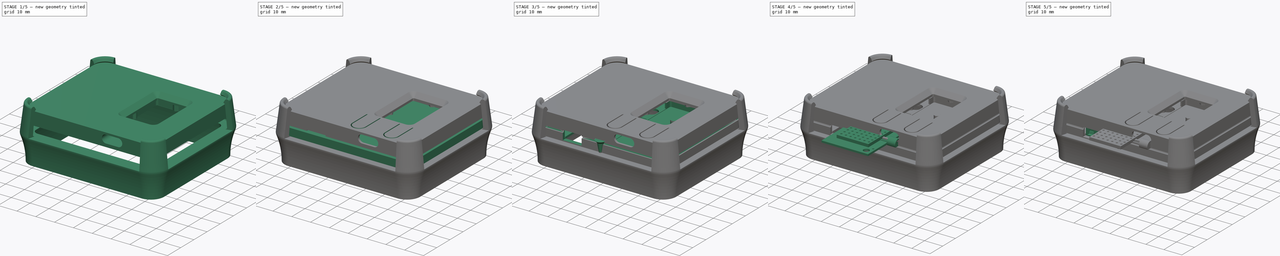
[diagram: build sequence overview — one tinted view per stage of 5, left to right]
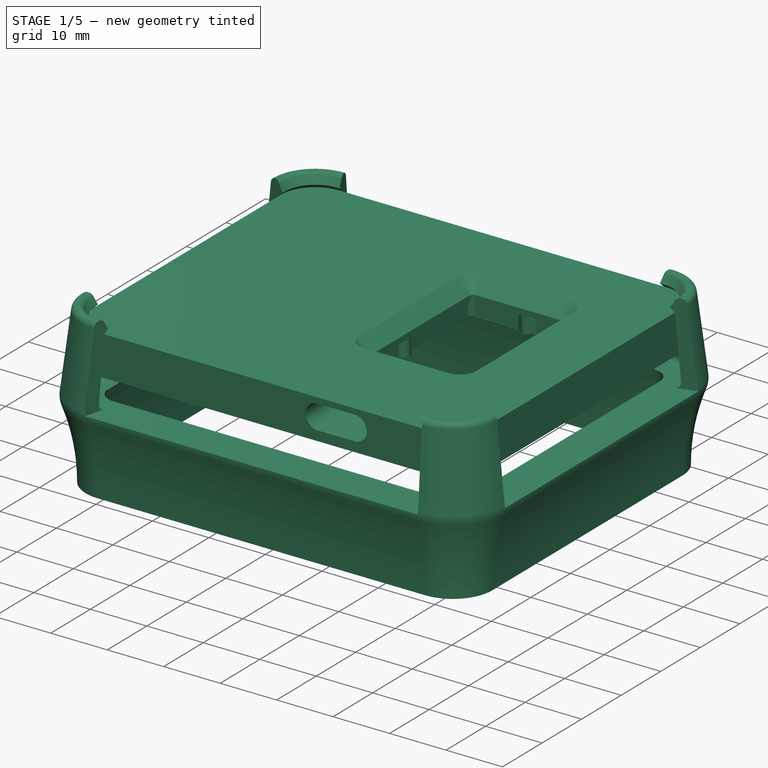
[diagram: stage 1 of 5 — iso view after this stage's code; geometry added in this stage tinted green]
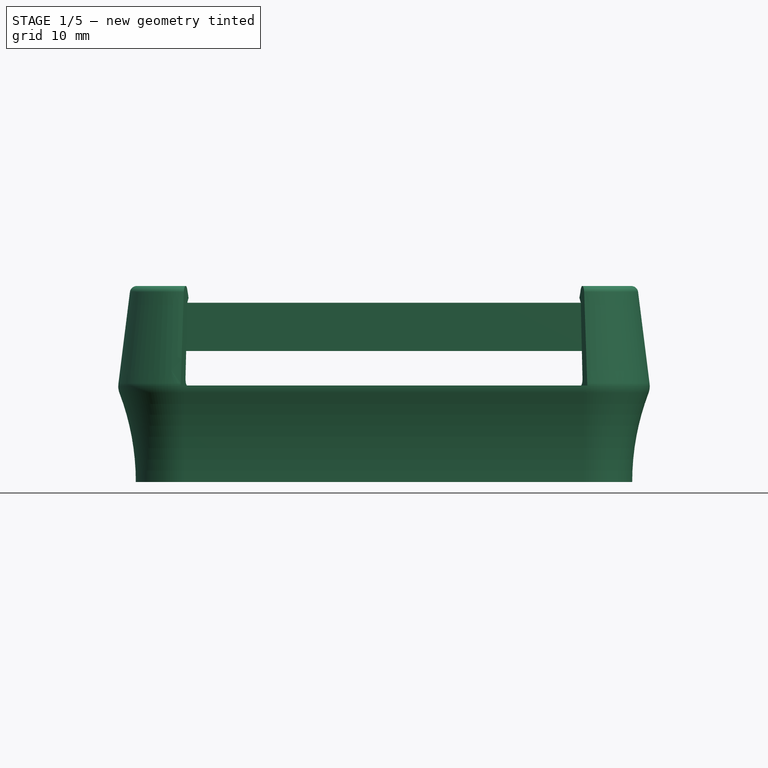
[diagram: stage 1 of 5 — front view after this stage's code; geometry added in this stage tinted green]
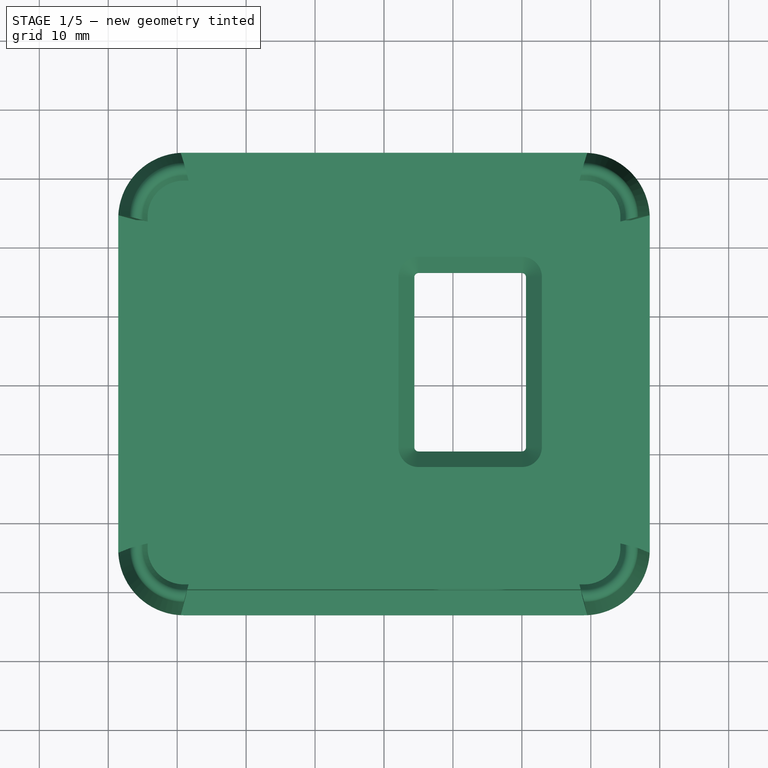
[diagram: stage 1 of 5 — top view after this stage's code; geometry added in this stage tinted green]
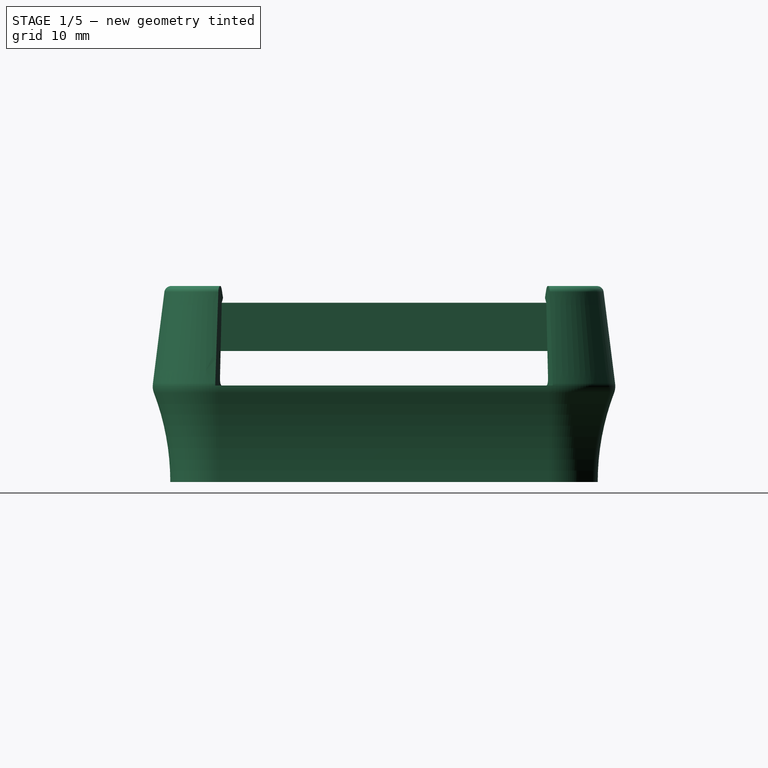
[diagram: stage 1 of 5 — right view after this stage's code; geometry added in this stage tinted green]
FCSTD DOCUMENT  (FreeCAD 0.19R24291 (Git))
Label: Thermostat
License: All rights reserved
LicenseURL: http://en.wikipedia.org/wiki/All_rights_reserved
objects: Sketcher::SketchObject×50, PartDesign::Pocket×28, PartDesign::Body×13, PartDesign::Pad×10, PartDesign::Mirrored×7, App::Part×6, PartDesign::LinearPattern×4, PartDesign::Groove×4, Part::Feature×3, PartDesign::Revolution×3, PartDesign::MultiTransform×2, PartDesign::PolarPattern×2, PartDesign::AdditivePipe×2, PartDesign::SubtractivePipe×2, Part::Compound×1, Part::FeaturePython×1, PartDesign::Plane×1
note: 181 computed .brp shape members not serialized (recipe doc carries the construction recipe); baked Part::Feature solids carry a one-line shape summary decoded from their .brp

FEATURE [App::Part] Part001  label="DallasSensor"
  Group = -> [Body005,Body012,Array]
  Origin = -> Origin014
  Placement = pos=(-2.55,8.87,-6e-16) rot=(-0.57735,-0.57735,-0.57735;2.0944rad)
FEATURE [App::Part] Part  label="SensorPCB"
  Group = -> [Body009,Part001]
  Origin = -> Origin009
  Placement = pos=(-13.5,48,1.6) rot=(-0.707107,-0.707107,0;3.14159rad)
FEATURE [Sketcher::SketchObject] Sketch025  label="th base"
  FullyConstrained = true
  MapMode = 5
  Support = -> [XY_Plane016]
  sketch-geometry (12):
    g0: LineSegment StartX=29 StartY=60 StartZ=0 EndX=-29 EndY=60 EndZ=0
    g1: LineSegment StartX=-35 StartY=54 StartZ=0 EndX=-35 EndY=6 EndZ=0
    g2: LineSegment StartX=-29 StartY=0 StartZ=0 EndX=29 EndY=0 EndZ=0
    g3: LineSegment StartX=35 StartY=6 StartZ=0 EndX=35 EndY=54 EndZ=0
    g4: ArcOfCircle CenterX=-29 CenterY=6 CenterZ=0 NormalX=0 NormalY=0 NormalZ=1 AngleXU=0 Radius=6 StartAngle=3.14159 EndAngle=4.71239
    g5: ArcOfCircle CenterX=29 CenterY=6 CenterZ=0 NormalX=0 NormalY=0 NormalZ=1 AngleXU=0 Radius=6 StartAngle=4.71239 EndAngle=6.28319
    g6: ArcOfCircle CenterX=29 CenterY=54 CenterZ=0 NormalX=0 NormalY=0 NormalZ=1 AngleXU=0 Radius=6 StartAngle=0 EndAngle=1.5708
    g7: ArcOfCircle CenterX=-29 CenterY=54 CenterZ=0 NormalX=0 NormalY=0 NormalZ=1 AngleXU=0 Radius=6 StartAngle=1.5708 EndAngle=3.14159
    g8: LineSegment StartX=-29 StartY=54 StartZ=0 EndX=29 EndY=54 EndZ=0
    g9: LineSegment StartX=29 StartY=54 StartZ=0 EndX=29 EndY=6 EndZ=0
    g10: LineSegment StartX=29 StartY=6 StartZ=0 EndX=-29 EndY=6 EndZ=0
    g11: LineSegment StartX=-29 StartY=6 StartZ=0 EndX=-29 EndY=54 EndZ=0
  constraints (27):
    c: Horizontal(g0)
    c: Horizontal(g2)
    c: Vertical(g1)
    c: Vertical(g3)
    c: Tangent(g2,g4) = -1.5708
    c: Tangent(g1,g4) = -1.5708
    c: Tangent(g2,g5) = -1.5708
    c: Tangent(g3,g5) = -1.5708
    c: Tangent(g3,g6) = -1.5708
    c: Tangent(g0,g6) = -1.5708
    c: Tangent(g0,g7) = -1.5708
    c: Tangent(g1,g7) = -1.5708
    c: Coincident(g8,g9)
    c: Coincident(g9,g10)
    c: Coincident(g10,g11)
    c: Coincident(g11,g8)
    c: Horizontal(g10)
    c: Vertical(g9)
    c: Coincident(g8,g7)
    c: Coincident(g9,g5)
    c: Coincident(g4,g10)
    c: Coincident(g6,g8)
    c: Symmetric(g7,g6,g-2)
    c: PointOnObject(g2,g-1)
    c: Radius(g6) = 6
    c: DistanceY(g0) = 60
    c: DistanceX(g1,g3) = 70
FEATURE [PartDesign::Pad] Pad014  label="TH Base"
  Direction = (1,1,1)
  Length = 12
  Length2 = 100
  Midplane = true
  Profile = -> Sketch025
  Type = 0
FEATURE [PartDesign::Body] Body015  label="SelftappingScrew3.0x16_002"
  Group = -> [Sketch028,Revolution001,Sketch029,Pocket005,PolarPattern001]
  Origin = -> Origin018
  Placement = pos=(-30,55,-6) rot=(0,1,0;3.14159rad)
  Tip = -> PolarPattern001
FEATURE [Sketcher::SketchObject] Sketch030  label="th screen cutout"
  FullyConstrained = true
  MapMode = 5
  Support = -> [XY_Plane016]
  sketch-geometry (14):
    g0: LineSegment StartX=5 StartY=45.35 StartZ=0 EndX=20 EndY=45.35 EndZ=0
    g1: LineSegment StartX=20 StartY=45.35 StartZ=0 EndX=20 EndY=20.65 EndZ=0
    g2: LineSegment StartX=20 StartY=20.65 StartZ=0 EndX=5 EndY=20.65 EndZ=0
    g3: LineSegment StartX=5 StartY=20.65 StartZ=0 EndX=5 EndY=45.35 EndZ=0
    g4: LineSegment StartX=12.5 StartY=45.35 StartZ=0 EndX=12.5 EndY=20.65 EndZ=0
    g5: LineSegment StartX=20 StartY=33 StartZ=0 EndX=5 EndY=33 EndZ=0
    g6: LineSegment StartX=5 StartY=45.95 StartZ=0 EndX=20 EndY=45.95 EndZ=0
    g7: LineSegment StartX=20.6 StartY=45.35 StartZ=0 EndX=20.6 EndY=20.65 EndZ=0
    g8: LineSegment StartX=20 StartY=20.05 StartZ=0 EndX=5 EndY=20.05 EndZ=0
    g9: LineSegment StartX=4.4 StartY=20.65 StartZ=0 EndX=4.4 EndY=45.35 EndZ=0
    g10: ArcOfCircle CenterX=20 CenterY=45.35 CenterZ=0 NormalX=0 NormalY=0 NormalZ=1 AngleXU=0 Radius=0.6 StartAngle=4.4148e-12 EndAngle=1.5708
    g11: ArcOfCircle CenterX=5 CenterY=45.35 CenterZ=0 NormalX=0 NormalY=0 NormalZ=1 AngleXU=0 Radius=0.6 StartAngle=1.5708 EndAngle=3.14159
    g12: ArcOfCircle CenterX=5 CenterY=20.65 CenterZ=0 NormalX=0 NormalY=0 NormalZ=1 AngleXU=0 Radius=0.6 StartAngle=3.14159 EndAngle=4.71239
    g13: ArcOfCircle CenterX=20 CenterY=20.65 CenterZ=0 NormalX=0 NormalY=0 NormalZ=1 AngleXU=0 Radius=0.6 StartAngle=4.71239 EndAngle=6.28319
  constraints (34):
    c: Coincident(g0,g1)
    c: Coincident(g1,g2)
    c: Coincident(g2,g3)
    c: Coincident(g3,g0)
    c: Horizontal(g0)
    c: Horizontal(g2)
    c: Vertical(g1)
    c: Vertical(g3)
    c: PointOnObject(g4,g0)
    c: PointOnObject(g4,g2)
    c: PointOnObject(g5,g1)
    c: PointOnObject(g5,g3)
    c: Symmetric(g0,g1,g5)
    c: Symmetric(g0,g0,g4)
    c: DistanceX(g0,g0) = 15
    c: DistanceY(g5) = 33
    c: DistanceX(g4) = 12.5
    c: DistanceY(g1,g1) = 24.7
    c: Horizontal(g6)
    c: Horizontal(g8)
    c: Vertical(g7)
    c: Tangent(g6,g10) = 1.5708
    c: Tangent(g7,g10) = 1.5708
    c: Tangent(g9,g11) = 1.5708
    c: Tangent(g6,g11) = 1.5708
    c: Tangent(g9,g12) = 1.5708
    c: Tangent(g8,g12) = 1.5708
    c: Tangent(g8,g13) = 1.5708
    c: Tangent(g7,g13) = 1.5708
    c: Coincident(g13,g1)
    c: Coincident(g2,g12)
    c: Coincident(g0,g11)
    c: Coincident(g0,g10)
    c: Radius(g10) = 0.6
FEATURE [PartDesign::Pocket] Pocket006  label="TH Screen cutout"
  BaseFeature = -> Pad014
  Length = 5
  Length2 = 100
  Profile = -> Sketch030
  Reversed = true
  Type = 1
FEATURE [Sketcher::SketchObject] Sketch031  label="th left button"
  FullyConstrained = true
  MapMode = 5
  Support = -> [XY_Plane016]
  sketch-geometry (11):
    g0: ArcOfCircle CenterX=3.9 CenterY=5.7 CenterZ=0 NormalX=0 NormalY=0 NormalZ=1 AngleXU=0 Radius=3.5 StartAngle=3.14159 EndAngle=6.28319
    g1: LineSegment StartX=0.4 StartY=16.5 StartZ=0 EndX=0.4 EndY=5.7 EndZ=0
    g2: LineSegment StartX=7.4 StartY=16.5 StartZ=0 EndX=7.4 EndY=5.7 EndZ=0
    g3: ArcOfCircle CenterX=0.4 CenterY=16.5 CenterZ=0 NormalX=0 NormalY=0 NormalZ=1 AngleXU=0 Radius=0.25 StartAngle=-6.2e-15 EndAngle=3.14157
    g4: ArcOfCircle CenterX=7.4 CenterY=16.5 CenterZ=0 NormalX=0 NormalY=0 NormalZ=1 AngleXU=0 Radius=0.25 StartAngle=3.1e-15 EndAngle=3.14159
    g5: ArcOfCircle CenterX=3.9 CenterY=5.7 CenterZ=0 NormalX=0 NormalY=0 NormalZ=1 AngleXU=0 Radius=3.25 StartAngle=3.14159 EndAngle=6.28319
    g6: ArcOfCircle CenterX=3.9 CenterY=5.7 CenterZ=0 NormalX=0 NormalY=0 NormalZ=1 AngleXU=0 Radius=3.75 StartAngle=3.14159 EndAngle=6.28319
    g7: LineSegment StartX=7.15 StartY=5.7 StartZ=0 EndX=7.15 EndY=16.5 EndZ=0
    g8: LineSegment StartX=7.65 StartY=16.5 StartZ=0 EndX=7.65 EndY=5.7 EndZ=0
    g9: LineSegment StartX=0.65 StartY=5.7 StartZ=0 EndX=0.65 EndY=16.5 EndZ=0
    g10: LineSegment StartX=0.15 StartY=16.5 StartZ=0 EndX=0.15 EndY=5.7 EndZ=0
  constraints (26):
    c: Tangent(g1,g0) = -1.5708
    c: Tangent(g2,g0) = 1.5708
    c: Vertical(g1)
    c: DistanceX(g0) = 3.9
    c: DistanceY(g0) = 5.7
    c: Vertical(g2)
    c: DistanceY(g2) = 16.5
    c: Equal(g1,g2)
    c: DistanceX(g1,g2) = 7
    c: Coincident(g3,g1)
    c: Coincident(g4,g2)
    c: Coincident(g5,g0)
    c: Coincident(g6,g5)
    c: Vertical(g7)
    c: Vertical(g8)
    c: Vertical(g9)
    c: Vertical(g10)
    c: Tangent(g6,g10) = -1.5708
    c: Tangent(g5,g9) = 1.5708
    c: Tangent(g5,g7) = -1.5708
    c: Tangent(g6,g8) = 1.5708
    c: Tangent(g4,g8) = 1.5708
    c: Tangent(g4,g7) = 1.5708
    c: Tangent(g3,g9) = -1.5708
    c: Radius(g4) = 0.25
    c: Coincident(g3,g10)
FEATURE [Sketcher::SketchObject] Sketch032  label="th separation top bottom"
  FullyConstrained = true
  MapMode = 5
  Placement = pos=(0,0,0) rot=(1,0,0;1.5708rad)
  Support = -> [XZ_Plane016]
  sketch-geometry (4):
    g0: LineSegment StartX=-40 StartY=-12 StartZ=0 EndX=40 EndY=-12 EndZ=0
    g1: LineSegment StartX=40 StartY=-12 StartZ=0 EndX=40 EndY=-1 EndZ=0
    g2: LineSegment StartX=40 StartY=-1 StartZ=0 EndX=-40 EndY=-1 EndZ=0
    g3: LineSegment StartX=-40 StartY=-1 StartZ=0 EndX=-40 EndY=-12 EndZ=0
  constraints (11):
    c: Coincident(g0,g1)
    c: Coincident(g1,g2)
    c: Coincident(g2,g3)
    c: Coincident(g3,g0)
    c: Horizontal(g2)
    c: Vertical(g1)
    c: Vertical(g3)
    c: DistanceY(g1,g-1) = 1
    c: Symmetric(g0,g0,g-2)
    c: DistanceX(g0,g0) = 80
    c: DistanceY(g0) = -12
FEATURE [PartDesign::Pocket] Pocket008  label="TH Separation top bottom"
  BaseFeature = -> Pocket006
  Length = 5
  Length2 = 100
  Midplane = true
  Profile = -> Sketch032
  Type = 1
FEATURE [PartDesign::Body] Body016  label="BH Bottom housing"
  Group = -> [Sketch033,Pad015,Sketch035,Pocket011,AdditivePipe,Sketch046,Sketch047,Sketch050,Sketch051,Sketch052,Pocket020,Pocket021,Pocket022,Groove002,Groove003,Sketch053,Sketch054,Pocket023,Sketch055,Pocket024,Sketch056,Pocket025,Sketch057,Pocket026,Revolution002,Sketch058]
  Origin = -> Origin020
  Tip = -> Revolution002
FEATURE [App::Part] Part003  label="BottomHousing"
  Group = -> [Body016]
  Origin = -> Origin019
FEATURE [Sketcher::SketchObject] Sketch059  label="th hole connector"
  FullyConstrained = true
  MapMode = 5
  Placement = pos=(0,0,0) rot=(1,0,0;1.5708rad)
  Support = -> [XZ_Plane016]
  sketch-geometry (5):
    g0: LineSegment StartX=-20 StartY=-0.5 StartZ=0 EndX=-10 EndY=-0.5 EndZ=0
    g1: LineSegment StartX=-10 StartY=-0.5 StartZ=0 EndX=-10 EndY=-5.5 EndZ=0
    g2: LineSegment StartX=-10 StartY=-5.5 StartZ=0 EndX=-20 EndY=-5.5 EndZ=0
    g3: LineSegment StartX=-20 StartY=-5.5 StartZ=0 EndX=-20 EndY=-0.5 EndZ=0
    g4: LineSegment StartX=-15 StartY=-0.5 StartZ=0 EndX=-15 EndY=-5.5 EndZ=0
  constraints (15):
    c: Coincident(g0,g1)
    c: Coincident(g1,g2)
    c: Coincident(g2,g3)
    c: Coincident(g3,g0)
    c: Horizontal(g0)
    c: Horizontal(g2)
    c: Vertical(g1)
    c: Vertical(g3)
    c: PointOnObject(g4,g0)
    c: PointOnObject(g4,g2)
    c: Symmetric(g0,g0,g4)
    c: DistanceX(g4,g-1) = 15
    c: DistanceX(g0,g0) = 10
    c: DistanceY(g1,g-1) = 5.5
    c: DistanceY(g1,g1) = 5
FEATURE [Sketcher::SketchObject] Sketch060  label="th groove rim crs"
  AttachmentOffset = pos=(0,0,-30) rot=(0,0,1;0rad)
  FullyConstrained = true
  MapMode = 5
  Placement = pos=(0,30,6.7e-15) rot=(1,0,0;1.5708rad)
  Support = -> [XZ_Plane016]
  sketch-geometry (4):
    g0: LineSegment StartX=33 StartY=-2 StartZ=0 EndX=33 EndY=0.7 EndZ=0
    g1: LineSegment StartX=34.8906 StartY=-2 StartZ=0 EndX=31.1094 EndY=-2 EndZ=0
    g2: LineSegment StartX=31.1094 StartY=-2 StartZ=0 EndX=33 EndY=0.7 EndZ=0
    g3: LineSegment StartX=33 StartY=0.7 StartZ=0 EndX=34.8906 EndY=-2 EndZ=0
  constraints (11):
    c: Vertical(g0)
    c: Coincident(g1,g2)
    c: Coincident(g3,g1)
    c: DistanceX(g0) = 33
    c: Symmetric(g1,g1,g0)
    c: PointOnObject(g0,g1)
    c: DistanceY(g1) = -2
    c: Angle(g2,g3) = 1.22173
    c: Coincident(g0,g2)
    c: Coincident(g0,g3)
    c: DistanceY(g-1,g2) = 0.7
FEATURE [PartDesign::SubtractivePipe] SubtractivePipe001  label="TH Groove rim"
  AuxilleryCurvelinear = true
  AuxillerySpineTangent = false
  BaseFeature = -> Pocket008
  Binormal = (0,0,0)
  Mode = 0
  Profile = -> Sketch060
  Spine = -> Sketch025
  SpineTangent = false
  Transformation = 0
  Transition = 0
FEATURE [PartDesign::Pocket] Pocket013  label="TH Pocket for glass"
  BaseFeature = -> SubtractivePipe001
  Length = 5
  Length2 = 100
  Profile = -> Sketch038
  Type = 1
FEATURE [PartDesign::SubtractivePipe] SubtractivePipe  label="TH Fillet screen cutout"
  AuxilleryCurvelinear = true
  AuxillerySpineTangent = false
  BaseFeature = -> Pocket013
  Binormal = (0,0,0)
  Mode = 0
  Profile = -> Sketch039
  Spine = -> Sketch030
  SpineTangent = false
  Transformation = 0
  Transition = 0
FEATURE [PartDesign::Pocket] Pocket012  label="TH USB cutout"
  BaseFeature = -> SubtractivePipe
  Length = 12
  Length2 = 100
  Profile = -> Sketch037
  Type = 0
FEATURE [PartDesign::Body] Body013  label="TH Top housing"
  Group = -> [Sketch025,Pad014,Sketch030,Pocket006,Sketch031,Sketch032,Pocket008,SubtractivePipe001,Sketch037,Sketch038,Pocket013,Sketch039,SubtractivePipe,Pocket012,Pocket017,Sketch040,Pocket014,Pocket007,Pocket015,LinearPattern003,Sketch041,Sketch042,Pocket016,Sketch043,Sketch044,Groove,Sketch045,Groove001,Sketch048,Pocket018,Sketch049,Pocket019,Sketch059,Sketch060,Pocket027]
  Origin = -> Origin016
  Tip = -> Pocket027
FEATURE [App::Part] Part002  label="TopHousing"
  Group = -> [Body013]
  Origin = -> Origin015
FEATURE [Sketcher::SketchObject] Sketch061  label="hd base"
  FullyConstrained = true
  MapMode = 5
  Support = -> [XY_Plane022]
  sketch-geometry (12):
    g0: LineSegment StartX=29 StartY=60 StartZ=0 EndX=-29 EndY=60 EndZ=0
    g1: LineSegment StartX=-35 StartY=54 StartZ=0 EndX=-35 EndY=6 EndZ=0
    g2: LineSegment StartX=-29 StartY=0 StartZ=0 EndX=29 EndY=0 EndZ=0
    g3: LineSegment StartX=35 StartY=6 StartZ=0 EndX=35 EndY=54 EndZ=0
    g4: ArcOfCircle CenterX=-29 CenterY=6 CenterZ=0 NormalX=0 NormalY=0 NormalZ=1 AngleXU=0 Radius=6 StartAngle=3.14159 EndAngle=4.71239
    g5: ArcOfCircle CenterX=29 CenterY=6 CenterZ=0 NormalX=0 NormalY=0 NormalZ=1 AngleXU=0 Radius=6 StartAngle=4.71239 EndAngle=6.28319
    g6: ArcOfCircle CenterX=29 CenterY=54 CenterZ=0 NormalX=0 NormalY=0 NormalZ=1 AngleXU=0 Radius=6 StartAngle=0 EndAngle=1.5708
    g7: ArcOfCircle CenterX=-29 CenterY=54 CenterZ=0 NormalX=0 NormalY=0 NormalZ=1 AngleXU=0 Radius=6 StartAngle=1.5708 EndAngle=3.14159
    g8: LineSegment StartX=-29 StartY=54 StartZ=0 EndX=29 EndY=54 EndZ=0
    g9: LineSegment StartX=29 StartY=54 StartZ=0 EndX=29 EndY=6 EndZ=0
    g10: LineSegment StartX=29 StartY=6 StartZ=0 EndX=-29 EndY=6 EndZ=0
    g11: LineSegment StartX=-29 StartY=6 StartZ=0 EndX=-29 EndY=54 EndZ=0
  constraints (27):
    c: Horizontal(g0)
    c: Horizontal(g2)
    c: Vertical(g1)
    c: Vertical(g3)
    c: Tangent(g2,g4) = -1.5708
    c: Tangent(g1,g4) = -1.5708
    c: Tangent(g2,g5) = -1.5708
    c: Tangent(g3,g5) = -1.5708
    c: Tangent(g3,g6) = -1.5708
    c: Tangent(g0,g6) = -1.5708
    c: Tangent(g0,g7) = -1.5708
    c: Tangent(g1,g7) = -1.5708
    c: Coincident(g8,g9)
    c: Coincident(g9,g10)
    c: Coincident(g10,g11)
    c: Coincident(g11,g8)
    c: Horizontal(g10)
    c: Vertical(g9)
    c: Coincident(g8,g7)
    c: Coincident(g9,g5)
    c: Coincident(g4,g10)
    c: Coincident(g6,g8)
    c: Symmetric(g7,g6,g-2)
    c: PointOnObject(g2,g-1)
    c: Radius(g6) = 6
    c: DistanceY(g0) = 60
    c: DistanceX(g1,g3) = 70
FEATURE [Sketcher::SketchObject] Sketch062
  FullyConstrained = true
  MapMode = 5
  Placement = pos=(0,0,0) rot=(0.57735,0.57735,0.57735;2.0944rad)
  Support = -> [YZ_Plane022]
  sketch-geometry (12):
    g0: LineSegment StartX=0 StartY=6 StartZ=0 EndX=0.707107 EndY=6.70711 EndZ=0
    g1: LineSegment StartX=0.707107 StartY=6.70711 StartZ=0 EndX=0 EndY=7.93185 EndZ=0
    g2: LineSegment StartX=-1.85815 StartY=7.55711 StartZ=0 EndX=-3.53018 EndY=-5.68687 EndZ=0
    g3: LineSegment StartX=-1 StartY=-20 StartZ=0 EndX=1 EndY=-20 EndZ=0
    g4: LineSegment StartX=3 StartY=-6 StartZ=0 EndX=0 EndY=-6 EndZ=0
    g5: LineSegment StartX=-0.958362 StartY=-4.95413 StartZ=0 EndX=-1e-16 EndY=6 EndZ=0
    g6: ArcOfCircle CenterX=-0.866025 CenterY=7.43185 CenterZ=0 NormalX=0 NormalY=0 NormalZ=1 AngleXU=0 Radius=1 StartAngle=0.523599 EndAngle=3.01601
    g7: ArcOfCircle CenterX=-0.553802 CenterY=-6.06263 CenterZ=0 NormalX=0 NormalY=0 NormalZ=1 AngleXU=0 Radius=3 StartAngle=3.01601 EndAngle=3.50404
    g8: LineSegment StartX=-1.04986 StartY=-6 StartZ=0 EndX=-3.53018 EndY=-5.68687 EndZ=0
    g9: ArcOfCircle CenterX=1e-16 CenterY=-5.03798 CenterZ=0 NormalX=0 NormalY=0 NormalZ=1 AngleXU=0 Radius=0.962023 StartAngle=3.05433 EndAngle=4.71239
    g10: ArcOfCircle CenterX=51 CenterY=-20 CenterZ=0 NormalX=0 NormalY=0 NormalZ=1 AngleXU=0 Radius=50 StartAngle=2.8578 EndAngle=3.14159
    g11: ArcOfCircle CenterX=-37.3085 CenterY=-20 CenterZ=0 NormalX=0 NormalY=0 NormalZ=1 AngleXU=0 Radius=36.3085 StartAngle=0 EndAngle=0.362447
  constraints (34):
    c: PointOnObject(g0,g-2)
    c: Coincident(g0,g1)
    c: Horizontal(g4)
    c: Coincident(g5,g0)
    c: DistanceY(g0) = 6
    c: Angle(g-2,g0) = 2.35619
    c: Angle(g-2,g1) = 0.523599
    c: Tangent(g1,g6) = -1.5708
    c: Tangent(g2,g6) = -1.5708
    c: Distance(g0) = 1
    c: PointOnObject(g1,g-2)
    c: Radius(g6) = 1
    c: Angle(g5,g-2) = 0.0872665
    c: Distance(g8,g2) = 2.5
    c: DistanceY(g8,g-1) = 6
    c: DistanceX(g4) = 3
    c: DistanceY(g3,g-1) = 20
    c: Tangent(g2,g7) = -1.5708
    c: Radius(g7) = 3
    c: Coincident(g8,g2)
    c: Perpendicular(g2,g8)
    c: Tangent(g4,g9) = 1.5708
    c: Tangent(g5,g9) = 1.5708
    c: PointOnObject(g4,g-2)
    c: PointOnObject(g8,g5)
    c: DistanceY(g4) = -6
    c: Symmetric(g3,g3,g-2)
    c: DistanceX(g3,g3) = 2
    c: Coincident(g10,g4)
    c: Coincident(g10,g3)
    c: PointOnObject(g10,g3)
    c: Coincident(g11,g3)
    c: Tangent(g7,g11) = 1.5708
    c: PointOnObject(g11,g3)
FEATURE [PartDesign::AdditivePipe] AdditivePipe001
  AuxilleryCurvelinear = true
  AuxillerySpineTangent = false
  Binormal = (0,0,0)
  Mode = 0
  Placement = pos=(0,0,0) rot=(0.57735,0.57735,0.57735;2.0944rad)
  Profile = -> Sketch062
  Spine = -> Sketch061
  SpineTangent = false
  Transformation = 0
  Transition = 0
FEATURE [Sketcher::SketchObject] Sketch063
  AttachmentOffset = pos=(0,0,-6) rot=(0,0,1;0rad)
  ExternalGeometry = -> [Sketch061]
  FullyConstrained = true
  MapMode = 5
  Placement = pos=(0,0,-6) rot=(0,0,1;0rad)
  Support = -> [XY_Plane022]
  sketch-geometry (4):
    g0: LineSegment StartX=-26.9294 StartY=6 StartZ=0 EndX=-32.2884 EndY=-14 EndZ=0
    g1: LineSegment StartX=-32.2884 StartY=-14 StartZ=0 EndX=32.2884 EndY=-14 EndZ=0
    g2: LineSegment StartX=32.2884 StartY=-14 StartZ=0 EndX=26.9294 EndY=6 EndZ=0
    g3: LineSegment StartX=26.9294 StartY=6 StartZ=0 EndX=-26.9294 EndY=6 EndZ=0
  constraints (10):
    c: Coincident(g0,g1)
    c: Coincident(g1,g2)
    c: Angle(g0,g2) = 0.523599
    c: DistanceY(g2,g2) = 20
    c: Coincident(g0,g3)
    c: Coincident(g2,g3)
    c: Symmetric(g2,g0,g-2)
    c: DistanceY(g-1,g2) = 6
    c: Distance(g-4,g2) = 2
    c: Symmetric(g0,g1,g-2)
FEATURE [PartDesign::Pocket] Pocket028
  BaseFeature = -> AdditivePipe001
  Length = 5
  Length2 = 100
  Placement = pos=(0,0,0) rot=(0.57735,0.57735,0.57735;2.0944rad)
  Profile = -> Sketch063
  Reversed = true
  Type = 1
FEATURE [PartDesign::Plane] DatumPlane
  AttachmentOffset = pos=(0,0,-30) rot=(0,0,1;0rad)
  Length = 89.5245
  MapMode = 5
  Placement = pos=(0,30,-6.7e-15) rot=(1,0,0;1.5708rad)
  ResizeMode = 0
  Support = -> [XZ_Plane022]
  Width = 62.4182
FEATURE [PartDesign::Mirrored] Mirrored005
  BaseFeature = -> Pocket028
  MirrorPlane = -> DatumPlane
  Originals = -> [Pocket028]
  Placement = pos=(0,0,0) rot=(0.57735,0.57735,0.57735;2.0944rad)
FEATURE [Sketcher::SketchObject] Sketch064
  AttachmentOffset = pos=(0,0,-6) rot=(0,0,1;0rad)
  ExternalGeometry = -> [Sketch061]
  FullyConstrained = true
  MapMode = 5
  Placement = pos=(0,0,-6) rot=(0,0,1;0rad)
  Support = -> [XY_Plane022]
  sketch-geometry (5):
    g0: LineSegment StartX=-45 StartY=3.78337 StartZ=0 EndX=-29 EndY=8.07055 EndZ=0
    g1: LineSegment StartX=-29 StartY=8.07055 StartZ=0 EndX=-29 EndY=51.9294 EndZ=0
    g2: LineSegment StartX=-29 StartY=51.9294 StartZ=0 EndX=-45 EndY=56.2166 EndZ=0
    g3: LineSegment StartX=-45 StartY=56.2166 StartZ=0 EndX=-45 EndY=3.78337 EndZ=0
    g4: LineSegment StartX=-45 StartY=30 StartZ=0 EndX=0 EndY=30 EndZ=0
  constraints (13):
    c: Coincident(g0,g1)
    c: Coincident(g1,g2)
    c: Coincident(g2,g3)
    c: Coincident(g3,g0)
    c: PointOnObject(g4,g3)
    c: PointOnObject(g4,g-2)
    c: Symmetric(g-4,g-3,g4)
    c: Symmetric(g1,g0,g4)
    c: Symmetric(g2,g0,g4)
    c: Distance(g-3,g0) = 2
    c: Angle(g2,g0) = 0.523599
    c: DistanceX(g-4,g1) = 6
    c: DistanceX(g2,g-4) = 10
FEATURE [PartDesign::Pocket] Pocket029
  BaseFeature = -> Mirrored005
  Length = 5
  Length2 = 100
  Placement = pos=(0,0,0) rot=(0.57735,0.57735,0.57735;2.0944rad)
  Profile = -> Sketch064
  Reversed = true
  Type = 1
FEATURE [PartDesign::Mirrored] Mirrored006
  BaseFeature = -> Pocket029
  MirrorPlane = -> YZ_Plane022
  Originals = -> [Pocket029]
  Placement = pos=(0,0,0) rot=(0.57735,0.57735,0.57735;2.0944rad)
FEATURE [PartDesign::Body] Body017  label="HD Holder"
  Group = -> [Sketch061,Sketch062,AdditivePipe001,Sketch063,Pocket028,DatumPlane,Mirrored005,Sketch064,Pocket029,Mirrored006]
  Origin = -> Origin022
  Tip = -> Mirrored006
FEATURE [App::Part] Part004  label="Holder"
  Group = -> [Body017]
  Origin = -> Origin021
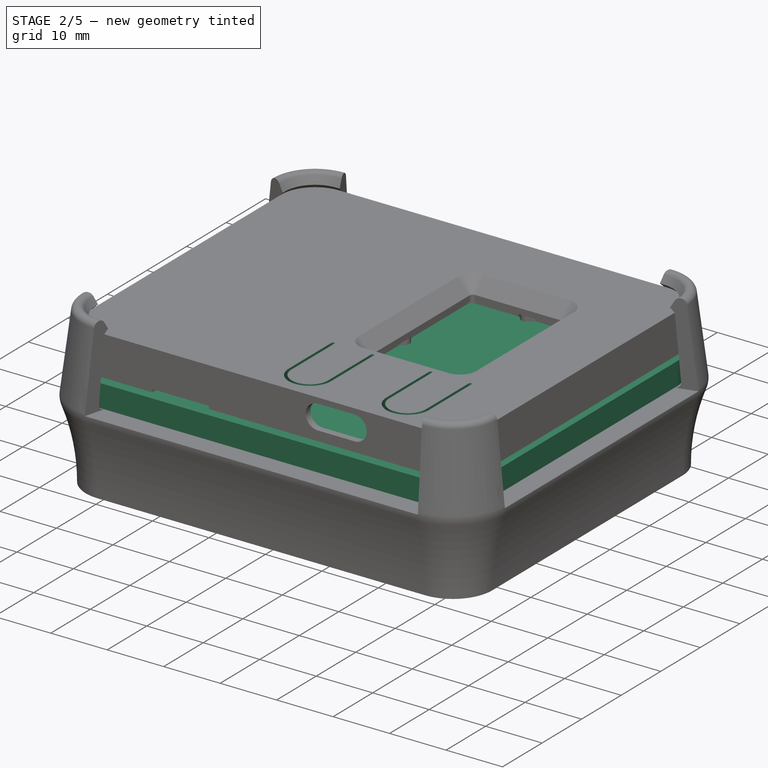
[diagram: stage 2 of 5 — iso view after this stage's code; geometry added in this stage tinted green]
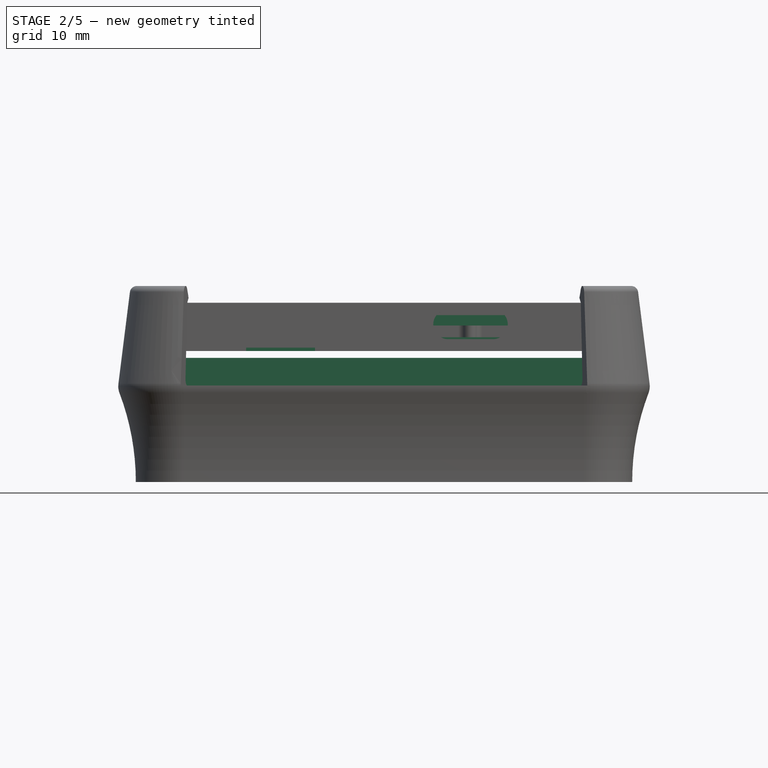
[diagram: stage 2 of 5 — front view after this stage's code; geometry added in this stage tinted green]
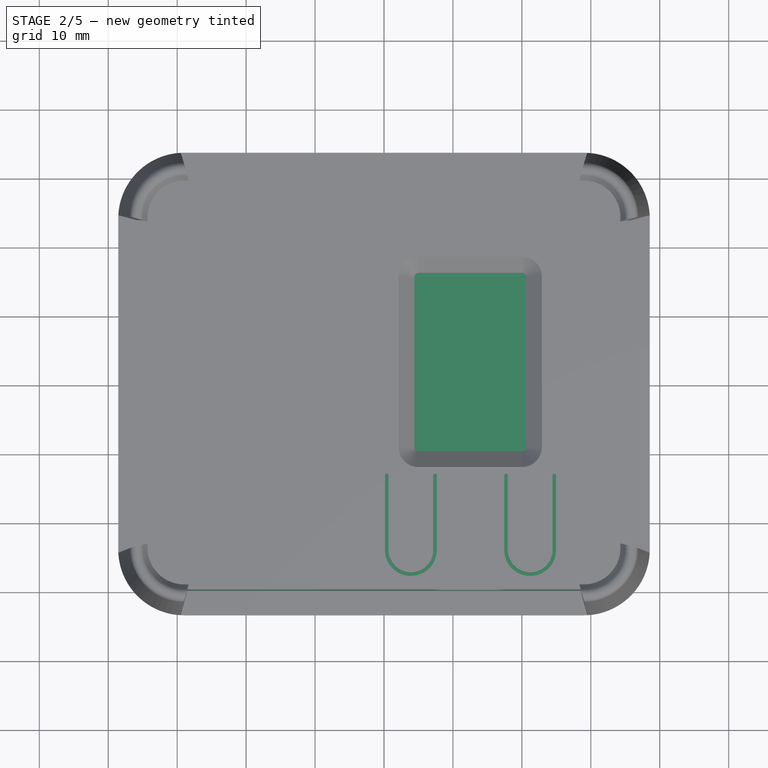
[diagram: stage 2 of 5 — top view after this stage's code; geometry added in this stage tinted green]
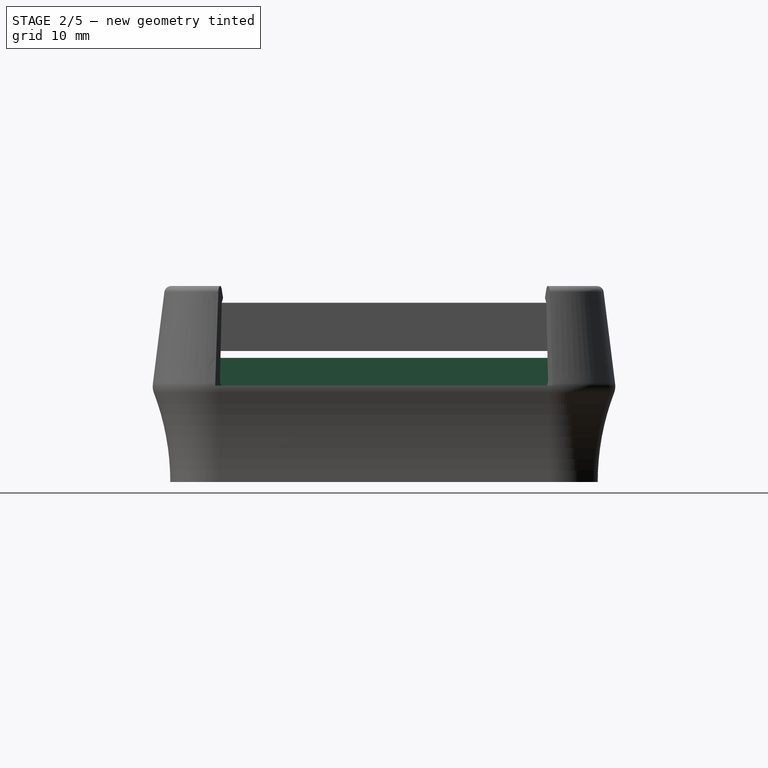
[diagram: stage 2 of 5 — right view after this stage's code; geometry added in this stage tinted green]
FEATURE [Sketcher::SketchObject] Sketch033  label="bh base"
  FullyConstrained = true
  MapMode = 5
  Support = -> [XY_Plane020]
  sketch-geometry (12):
    g0: LineSegment StartX=29 StartY=60 StartZ=0 EndX=-29 EndY=60 EndZ=0
    g1: LineSegment StartX=-35 StartY=54 StartZ=0 EndX=-35 EndY=6 EndZ=0
    g2: LineSegment StartX=-29 StartY=0 StartZ=0 EndX=29 EndY=0 EndZ=0
    g3: LineSegment StartX=35 StartY=6 StartZ=0 EndX=35 EndY=54 EndZ=0
    g4: ArcOfCircle CenterX=-29 CenterY=6 CenterZ=0 NormalX=0 NormalY=0 NormalZ=1 AngleXU=0 Radius=6 StartAngle=3.14159 EndAngle=4.71239
    g5: ArcOfCircle CenterX=29 CenterY=6 CenterZ=0 NormalX=0 NormalY=0 NormalZ=1 AngleXU=0 Radius=6 StartAngle=4.71239 EndAngle=6.28319
    g6: ArcOfCircle CenterX=29 CenterY=54 CenterZ=0 NormalX=0 NormalY=0 NormalZ=1 AngleXU=0 Radius=6 StartAngle=0 EndAngle=1.5708
    g7: ArcOfCircle CenterX=-29 CenterY=54 CenterZ=0 NormalX=0 NormalY=0 NormalZ=1 AngleXU=0 Radius=6 StartAngle=1.5708 EndAngle=3.14159
    g8: LineSegment StartX=-29 StartY=54 StartZ=0 EndX=29 EndY=54 EndZ=0
    g9: LineSegment StartX=29 StartY=54 StartZ=0 EndX=29 EndY=6 EndZ=0
    g10: LineSegment StartX=29 StartY=6 StartZ=0 EndX=-29 EndY=6 EndZ=0
    g11: LineSegment StartX=-29 StartY=6 StartZ=0 EndX=-29 EndY=54 EndZ=0
  constraints (27):
    c: Horizontal(g0)
    c: Horizontal(g2)
    c: Vertical(g1)
    c: Vertical(g3)
    c: Tangent(g2,g4) = -1.5708
    c: Tangent(g1,g4) = -1.5708
    c: Tangent(g2,g5) = -1.5708
    c: Tangent(g3,g5) = -1.5708
    c: Tangent(g3,g6) = -1.5708
    c: Tangent(g0,g6) = -1.5708
    c: Tangent(g0,g7) = -1.5708
    c: Tangent(g1,g7) = -1.5708
    c: Coincident(g8,g9)
    c: Coincident(g9,g10)
    c: Coincident(g10,g11)
    c: Coincident(g11,g8)
    c: Horizontal(g10)
    c: Vertical(g9)
    c: Coincident(g8,g7)
    c: Coincident(g9,g5)
    c: Coincident(g4,g10)
    c: Coincident(g6,g8)
    c: Symmetric(g7,g6,g-2)
    c: PointOnObject(g2,g-1)
    c: Radius(g6) = 6
    c: DistanceY(g0) = 60
    c: DistanceX(g1,g3) = 70
FEATURE [Sketcher::SketchObject] Sketch035  label="bh separation top bottom"
  FullyConstrained = true
  MapMode = 5
  Placement = pos=(0,0,0) rot=(1,0,0;1.5708rad)
  Support = -> [XZ_Plane016]
  sketch-geometry (4):
    g0: LineSegment StartX=-40 StartY=12 StartZ=0 EndX=40 EndY=12 EndZ=0
    g1: LineSegment StartX=40 StartY=12 StartZ=0 EndX=40 EndY=-2 EndZ=0
    g2: LineSegment StartX=40 StartY=-2 StartZ=0 EndX=-40 EndY=-2 EndZ=0
    g3: LineSegment StartX=-40 StartY=-2 StartZ=0 EndX=-40 EndY=12 EndZ=0
  constraints (11):
    c: Coincident(g0,g1)
    c: Coincident(g1,g2)
    c: Coincident(g2,g3)
    c: Coincident(g3,g0)
    c: Horizontal(g2)
    c: Vertical(g1)
    c: Vertical(g3)
    c: DistanceY(g1,g-1) = 2
    c: Symmetric(g0,g0,g-2)
    c: DistanceX(g0,g0) = 80
    c: DistanceY(g0) = 12
FEATURE [PartDesign::Pad] Pad015  label="BH Base"
  Direction = (1,1,1)
  Length = 12
  Length2 = 100
  Midplane = true
  Profile = -> Sketch033
  Type = 0
FEATURE [PartDesign::Pocket] Pocket011  label="BH Separation top bottom"
  BaseFeature = -> Pad015
  Length = 5
  Length2 = 100
  Midplane = true
  Profile = -> Sketch035
  Type = 1
FEATURE [PartDesign::Pocket] Pocket017  label="TH Trim USB cutout"
  BaseFeature = -> Pocket012
  Length = 5
  Length2 = 100
  Profile = -> Sketch043
  Type = 1
FEATURE [PartDesign::Pocket] Pocket014  label="TH PCB Cutout"
  BaseFeature = -> Pocket017
  Length = 5
  Length2 = 100
  Profile = -> Sketch040
  Type = 1
FEATURE [PartDesign::Pocket] Pocket007  label="TH Left button contour"
  BaseFeature = -> Pocket014
  Length = 5
  Length2 = 100
  Profile = -> Sketch031
  Reversed = true
  Type = 1
FEATURE [PartDesign::Pocket] Pocket015  label="TH Left button recess"
  BaseFeature = -> Pocket007
  Length = 7.5
  Length2 = 100
  Midplane = true
  Profile = -> Sketch041
  Type = 0
FEATURE [PartDesign::LinearPattern] LinearPattern003  label="TH Right button"
  BaseFeature = -> Pocket015
  Direction = -> X_Axis016
  Length = 17.3
  Occurrences = 2
  Originals = -> [Pocket007,Pocket015]
FEATURE [PartDesign::Pocket] Pocket016  label="TH Pocket for reset button"
  BaseFeature = -> LinearPattern003
  Length = 5
  Length2 = 100
  Profile = -> Sketch042
  Type = 1
FEATURE [PartDesign::Groove] Groove  label="TH Screw hole 1"
  Angle = 360
  Axis = (0,6e-16,2.8)
  Base = (30,5,4.5)
  BaseFeature = -> Pocket016
  Profile = -> Sketch044
  ReferenceAxis = -> Sketch044 [Axis0]
FEATURE [PartDesign::Groove] Groove001  label="TH Screw hole 2"
  Angle = 360
  Axis = (0,6e-16,2.8)
  Base = (-30,55,4.5)
  BaseFeature = -> Groove
  Profile = -> Sketch045
  ReferenceAxis = -> Sketch045 [Axis0]
FEATURE [PartDesign::Pocket] Pocket018  label="TH Sensor PCB"
  BaseFeature = -> Groove001
  Length = 5
  Length2 = 100
  Profile = -> Sketch048
  Type = 1
FEATURE [PartDesign::Pocket] Pocket019  label="TH Opentherm PCB"
  BaseFeature = -> Pocket018
  Length = 5
  Length2 = 100
  Profile = -> Sketch049
  Type = 1
FEATURE [PartDesign::Pocket] Pocket027  label="TH Hole connector"
  BaseFeature = -> Pocket019
  Length = 5
  Length2 = 100
  Profile = -> Sketch059
  Type = 0
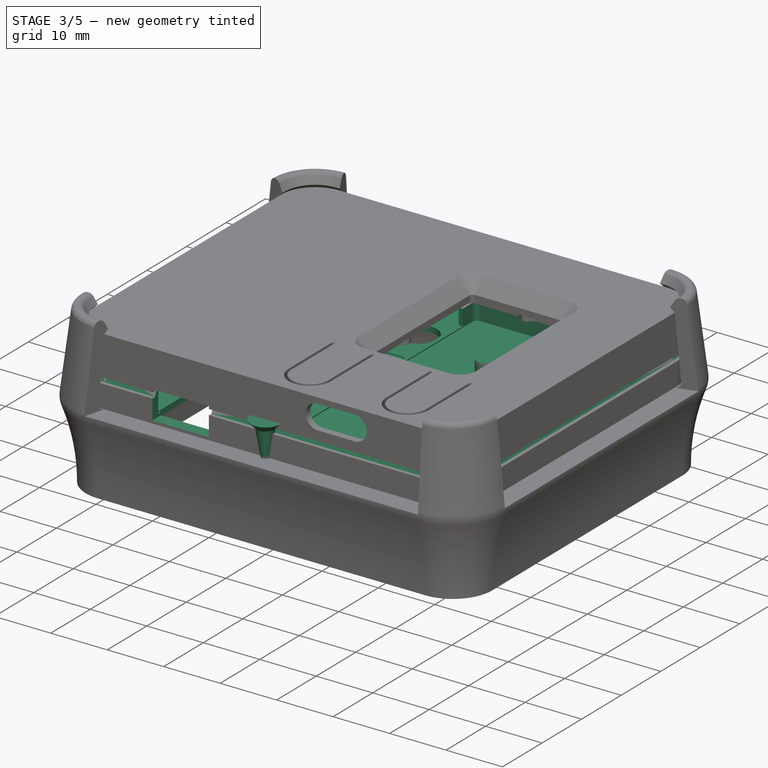
[diagram: stage 3 of 5 — iso view after this stage's code; geometry added in this stage tinted green]
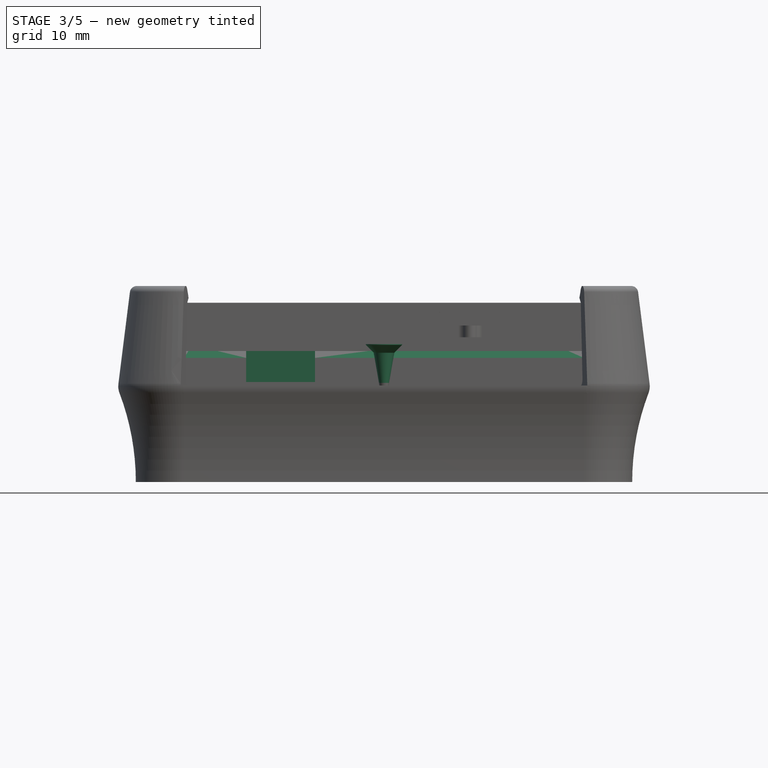
[diagram: stage 3 of 5 — front view after this stage's code; geometry added in this stage tinted green]
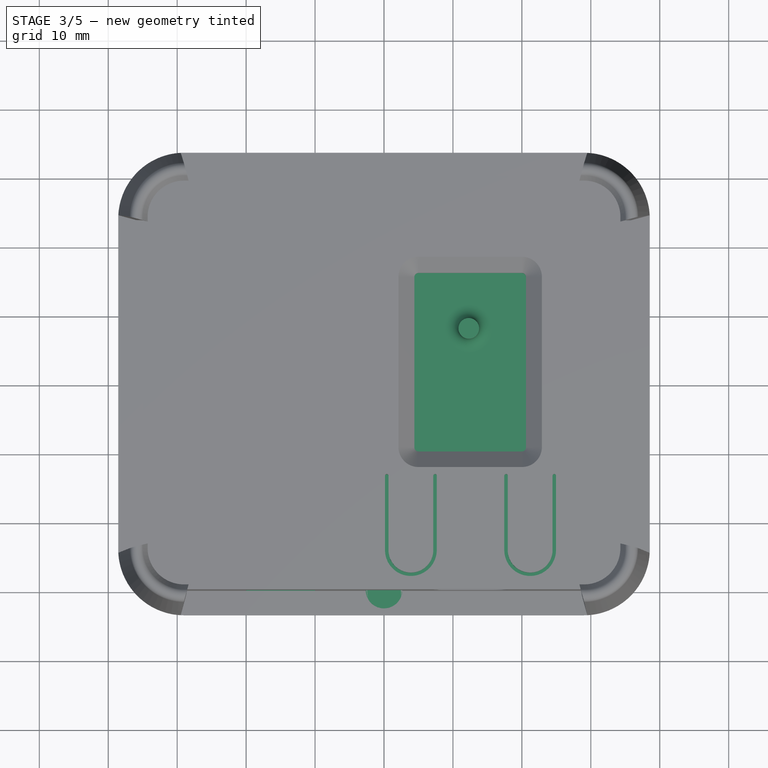
[diagram: stage 3 of 5 — top view after this stage's code; geometry added in this stage tinted green]
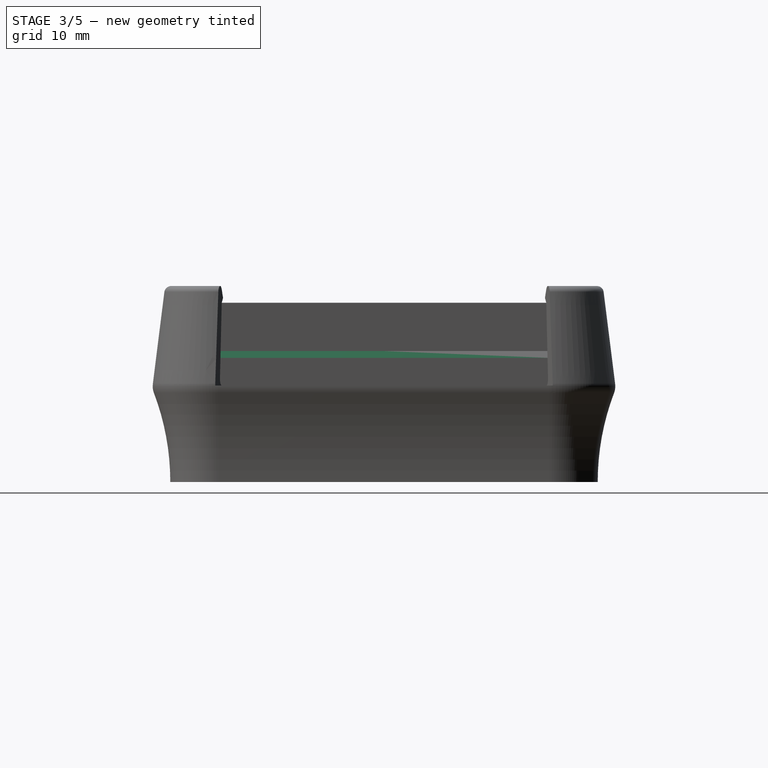
[diagram: stage 3 of 5 — right view after this stage's code; geometry added in this stage tinted green]
FEATURE [PartDesign::Body] Body014  label="SelftappingScrew3.0x16_01"
  Group = -> [Sketch026,Revolution,Sketch027,Pocket004,PolarPattern]
  Origin = -> Origin017
  Placement = pos=(30,5,-6) rot=(0,1,0;3.14159rad)
  Tip = -> PolarPattern
FEATURE [Sketcher::SketchObject] Sketch028
  FullyConstrained = true
  MapMode = 5
  Placement = pos=(0,0,0) rot=(1,0,0;1.5708rad)
  Support = -> [XZ_Plane018]
  sketch-geometry (5):
    g0: LineSegment StartX=0 StartY=0 StartZ=0 EndX=0 EndY=-10 EndZ=0
    g1: LineSegment StartX=0 StartY=-10 StartZ=0 EndX=1.5 EndY=-1.25 EndZ=0
    g2: LineSegment StartX=1.5 StartY=-1.25 StartZ=0 EndX=2.65 EndY=-0.1 EndZ=0
    g3: LineSegment StartX=2.65 StartY=0 StartZ=0 EndX=0 EndY=0 EndZ=0
    g4: LineSegment StartX=2.65 StartY=-0.1 StartZ=0 EndX=2.65 EndY=0 EndZ=0
  constraints (14):
    c: Coincident(g-1,g0)
    c: Vertical(g0)
    c: Coincident(g0,g1)
    c: Coincident(g1,g2)
    c: Coincident(g3,g0)
    c: DistanceY(g0,g0) = 10
    c: Angle(g3,g2) = 0.785398
    c: DistanceX(g0,g1) = 1.5
    c: Horizontal(g3)
    c: Coincident(g4,g2)
    c: Vertical(g4)
    c: Coincident(g3,g4)
    c: DistanceX(g3) = 2.65
    c: DistanceY(g4,g4) = 0.1
FEATURE [Sketcher::SketchObject] Sketch029
  FullyConstrained = false
  MapMode = 5
  Placement = pos=(0,0,0) rot=(1,0,0;1.5708rad)
  Support = -> [XZ_Plane018]
  sketch-geometry (3):
    g0: LineSegment StartX=-2 StartY=0 StartZ=0 EndX=0 EndY=-2 EndZ=0
    g1: LineSegment StartX=0 StartY=-2 StartZ=0 EndX=2 EndY=0 EndZ=0
    g2: LineSegment StartX=2 StartY=0 StartZ=0 EndX=-2 EndY=0 EndZ=0
  constraints (9):
    c: PointOnObject(g0,g-1)
    c: Coincident(g0,g1)
    c: PointOnObject(g1,g-1)
    c: Coincident(g1,g2)
    c: Coincident(g2,g0)
    c: PointOnObject(g0,g-2)
    c: Equal(g1,g0)
    c: Perpendicular(g0,g1)
    c: DistanceX(g2,g2) = 4
FEATURE [PartDesign::Revolution] Revolution001
  AllowMultiFace = false
  Angle = 360
  Axis = (-3e-16,3e-16,1)
  Base = (0,0,0)
  Placement = pos=(0,0,0) rot=(1,0,0;1.5708rad)
  Profile = -> Sketch028
  ReferenceAxis = -> Z_Axis018
  Reversed = true
FEATURE [Sketcher::SketchObject] Sketch037  label="th usb cutout"
  FullyConstrained = true
  MapMode = 5
  Placement = pos=(0,0,0) rot=(1,0,0;1.5708rad)
  Support = -> [XZ_Plane016]
  sketch-geometry (5):
    g0: ArcOfCircle CenterX=9.3 CenterY=2.87 CenterZ=0 NormalX=0 NormalY=0 NormalZ=1 AngleXU=0 Radius=2.15 StartAngle=1.5708 EndAngle=4.71239
    g1: ArcOfCircle CenterX=15.8 CenterY=2.87 CenterZ=0 NormalX=0 NormalY=0 NormalZ=1 AngleXU=0 Radius=2.15 StartAngle=4.71239 EndAngle=7.85398
    g2: LineSegment StartX=9.3 StartY=0.72 StartZ=0 EndX=15.8 EndY=0.72 EndZ=0
    g3: LineSegment StartX=9.3 StartY=5.02 StartZ=0 EndX=15.8 EndY=5.02 EndZ=0
    g4: LineSegment StartX=12.55 StartY=5.02 StartZ=0 EndX=12.55 EndY=0.72 EndZ=0
  constraints (13):
    c: Tangent(g0,g3) = 1.5708
    c: Tangent(g0,g2) = -1.5708
    c: Tangent(g2,g1) = -1.5708
    c: Tangent(g3,g1) = 1.5708
    c: Horizontal(g2)
    c: Equal(g0,g1)
    c: DistanceY(g0) = 2.87
    c: DistanceX(g0,g1) = 6.5
    c: DistanceY(g0,g0) = 4.3
    c: PointOnObject(g4,g3)
    c: PointOnObject(g4,g2)
    c: Symmetric(g1,g0,g4)
    c: DistanceX(g4) = 12.55
FEATURE [Sketcher::SketchObject] Sketch038  label="th pocket for glass"
  AttachmentOffset = pos=(0,0,2.7) rot=(0,0,1;0rad)
  FullyConstrained = true
  MapMode = 5
  Placement = pos=(0,0,2.7) rot=(0,0,1;0rad)
  Support = -> [XY_Plane016]
  sketch-geometry (30):
    g0: LineSegment StartX=3.5 StartY=47.3 StartZ=0 EndX=21.5 EndY=47.3 EndZ=0
    g1: LineSegment StartX=21.5 StartY=47.3 StartZ=0 EndX=21.5 EndY=15.7 EndZ=0
    g2: LineSegment StartX=21.5 StartY=15.7 StartZ=0 EndX=3.5 EndY=15.7 EndZ=0
    g3: LineSegment StartX=3.5 StartY=15.7 StartZ=0 EndX=3.5 EndY=47.3 EndZ=0
    g4: LineSegment StartX=12.5 StartY=47.3 StartZ=0 EndX=12.5 EndY=15.7 EndZ=0
    g5: LineSegment StartX=21.5 StartY=31.5 StartZ=0 EndX=3.5 EndY=31.5 EndZ=0
    g6: ArcOfCircle CenterX=12.5 CenterY=48.3 CenterZ=0 NormalX=0 NormalY=0 NormalZ=1 AngleXU=0 Radius=1 StartAngle=3.66519 EndAngle=5.75959
    g7: ArcOfCircle CenterX=14.2321 CenterY=47.3 CenterZ=0 NormalX=0 NormalY=0 NormalZ=1 AngleXU=0 Radius=1 StartAngle=1.5708 EndAngle=2.61799
    g8: ArcOfCircle CenterX=10.7679 CenterY=47.3 CenterZ=0 NormalX=0 NormalY=0 NormalZ=1 AngleXU=0 Radius=1 StartAngle=0.523599 EndAngle=1.5708
    g9: ArcOfCircle CenterX=12.5 CenterY=14.7 CenterZ=0 NormalX=0 NormalY=0 NormalZ=1 AngleXU=0 Radius=1 StartAngle=0.523599 EndAngle=2.61799
    g10: ArcOfCircle CenterX=14.2321 CenterY=15.7 CenterZ=0 NormalX=0 NormalY=0 NormalZ=1 AngleXU=0 Radius=1 StartAngle=3.66519 EndAngle=4.71239
    g11: ArcOfCircle CenterX=10.7679 CenterY=15.7 CenterZ=0 NormalX=0 NormalY=0 NormalZ=1 AngleXU=0 Radius=1 StartAngle=4.71239 EndAngle=5.75959
    g12: ArcOfCircle CenterX=21.5 CenterY=47.3 CenterZ=0 NormalX=0 NormalY=0 NormalZ=1 AngleXU=0 Radius=1 StartAngle=5.23599 EndAngle=7.85398
    g13: LineSegment StartX=14.2321 StartY=48.3 StartZ=0 EndX=21.5 EndY=48.3 EndZ=0
    g14: ArcOfCircle CenterX=22.5 CenterY=45.5679 CenterZ=0 NormalX=0 NormalY=0 NormalZ=1 AngleXU=0 Radius=1 StartAngle=2.0944 EndAngle=4.18879
    g15: ArcOfCircle CenterX=21.5 CenterY=43.8359 CenterZ=0 NormalX=0 NormalY=0 NormalZ=1 AngleXU=0 Radius=1 StartAngle=-9e-16 EndAngle=1.0472
    g16: ArcOfCircle CenterX=21.5 CenterY=15.7 CenterZ=0 NormalX=0 NormalY=0 NormalZ=1 AngleXU=0 Radius=1 StartAngle=4.71239 EndAngle=7.33038
    g17: ArcOfCircle CenterX=22.5 CenterY=17.4321 CenterZ=0 NormalX=0 NormalY=0 NormalZ=1 AngleXU=0 Radius=1 StartAngle=2.0944 EndAngle=4.18879
    g18: ArcOfCircle CenterX=21.5 CenterY=19.1641 CenterZ=0 NormalX=0 NormalY=0 NormalZ=1 AngleXU=0 Radius=1 StartAngle=5.23599 EndAngle=6.28319
    g19: LineSegment StartX=14.2321 StartY=14.7 StartZ=0 EndX=21.5 EndY=14.7 EndZ=0
    g20: LineSegment StartX=22.5 StartY=19.1641 StartZ=0 EndX=22.5 EndY=43.8359 EndZ=0
    g21: ArcOfCircle CenterX=3.5 CenterY=15.7 CenterZ=0 NormalX=0 NormalY=0 NormalZ=1 AngleXU=0 Radius=1 StartAngle=3.14159 EndAngle=4.71239
    g22: LineSegment StartX=3.5 StartY=14.7 StartZ=0 EndX=10.7679 EndY=14.7 EndZ=0
    g23: ArcOfCircle CenterX=2.5 CenterY=31.5 CenterZ=0 NormalX=0 NormalY=0 NormalZ=1 AngleXU=0 Radius=1 StartAngle=5.23599 EndAngle=7.33038
    g24: ArcOfCircle CenterX=3.5 CenterY=33.2321 CenterZ=0 NormalX=0 NormalY=0 NormalZ=1 AngleXU=0 Radius=1 StartAngle=3.14159 EndAngle=4.18879
    g25: ArcOfCircle CenterX=3.5 CenterY=29.7679 CenterZ=0 NormalX=0 NormalY=0 NormalZ=1 AngleXU=0 Radius=1 StartAngle=2.0944 EndAngle=3.14159
    g26: LineSegment StartX=2.5 StartY=29.7679 StartZ=0 EndX=2.5 EndY=15.7 EndZ=0
    g27: LineSegment StartX=2.5 StartY=47.3 StartZ=0 EndX=2.5 EndY=33.2321 EndZ=0
    g28: ArcOfCircle CenterX=3.5 CenterY=47.3 CenterZ=0 NormalX=0 NormalY=0 NormalZ=1 AngleXU=0 Radius=1 StartAngle=1.5708 EndAngle=3.14159
    g29: LineSegment StartX=3.5 StartY=48.3 StartZ=0 EndX=10.7679 EndY=48.3 EndZ=0
  constraints (79):
    c: Coincident(g0,g1)
    c: Coincident(g1,g2)
    c: Coincident(g2,g3)
    c: Coincident(g3,g0)
    c: Horizontal(g0)
    c: Horizontal(g2)
    c: Vertical(g1)
    c: Vertical(g3)
    c: PointOnObject(g4,g0)
    c: PointOnObject(g4,g2)
    c: PointOnObject(g5,g1)
    c: PointOnObject(g5,g3)
    c: Symmetric(g0,g0,g4)
    c: Symmetric(g0,g1,g5)
    c: DistanceX(g4) = 12.5
    c: DistanceY(g5) = 31.5
    c: DistanceY(g1,g1) = 31.6
    c: DistanceX(g0,g0) = 18
    c: Tangent(g6,g8) = 1.5708
    c: Tangent(g6,g7) = 1.5708
    c: Tangent(g6,g0)
    c: Equal(g7,g6)
    c: Equal(g6,g8)
    c: PointOnObject(g6,g4)
    c: Radius(g6) = 1
    c: Tangent(g9,g11) = 1.5708
    c: Tangent(g9,g10) = 1.5708
    c: Tangent(g9,g2)
    c: Equal(g10,g9)
    c: Equal(g9,g11)
    c: Equal(g11,g6)
    c: Coincident(g12,g0)
    c: Horizontal(g13)
    c: Tangent(g12,g13) = 1.5708
    c: Tangent(g7,g13) = 1.5708
    c: Equal(g6,g12)
    c: Tangent(g12,g14) = 1.5708
    c: Tangent(g14,g1)
    c: Equal(g14,g15)
    c: Equal(g15,g12)
    c: Tangent(g14,g15) = 1.5708
    c: Coincident(g16,g1)
    c: Equal(g10,g16)
    c: Equal(g16,g17)
    c: Equal(g17,g18)
    c: Horizontal(g19)
    c: Tangent(g10,g19) = -1.5708
    c: Tangent(g16,g19) = -1.5708
    c: Tangent(g16,g17) = 1.5708
    c: Tangent(g17,g1)
    c: Tangent(g18,g17) = 1.5708
    c: Vertical(g20)
    c: Tangent(g15,g20) = -1.5708
    c: Tangent(g18,g20) = -1.5708
    c: Tangent(g20,g16)
    c: Coincident(g21,g2)
    c: Horizontal(g22)
    c: Tangent(g22,g11) = -1.5708
    c: Tangent(g21,g22) = -1.5708
    c: Equal(g9,g21)
    c: PointOnObject(g9,g4)
    c: Equal(g25,g23)
    c: Equal(g23,g24)
    c: Equal(g24,g6)
    c: Tangent(g23,g3)
    c: Tangent(g23,g24) = 1.5708
    c: Tangent(g23,g25) = 1.5708
    c: Vertical(g26)
    c: Vertical(g27)
    c: Tangent(g24,g27) = -1.5708
    c: Tangent(g25,g26) = -1.5708
    c: Tangent(g21,g26) = -1.5708
    c: PointOnObject(g23,g5)
    c: Coincident(g28,g0)
    c: Horizontal(g29)
    c: Tangent(g8,g29) = 1.5708
    c: Tangent(g28,g29) = 1.5708
    c: Tangent(g27,g28) = -1.5708
    c: Equal(g28,g6)
FEATURE [Sketcher::SketchObject] Sketch039  label="th fillet screen cutout"
  AttachmentOffset = pos=(0,0,-33) rot=(0,0,1;0rad)
  FullyConstrained = false
  MapMode = 5
  Placement = pos=(0,33,7.3e-15) rot=(1,0,0;1.5708rad)
  Support = -> [XZ_Plane016]
  sketch-geometry (3):
    g0: LineSegment StartX=20.6 StartY=3.7 StartZ=0 EndX=20.6 EndY=6.7 EndZ=0
    g1: LineSegment StartX=20.6 StartY=6.7 StartZ=0 EndX=23.6 EndY=6.7 EndZ=0
    g2: LineSegment StartX=23.6 StartY=6.7 StartZ=0 EndX=20.6 EndY=3.7 EndZ=0
  constraints (7):
    c: Vertical(g0)
    c: Coincident(g0,g1)
    c: Horizontal(g1)
    c: Coincident(g1,g2)
    c: Coincident(g2,g0)
    c: Equal(g0,g1)
    c: DistanceY(g0,g0) = 3
FEATURE [Sketcher::SketchObject] Sketch040  label="th PCB Cutout"
  AttachmentOffset = pos=(0,0,1) rot=(0,0,1;0rad)
  FullyConstrained = true
  MapMode = 5
  Placement = pos=(0,0,1) rot=(0,0,1;0rad)
  Support = -> [XY_Plane016]
  sketch-geometry (12):
    g0: LineSegment StartX=0 StartY=53.5 StartZ=0 EndX=25.1 EndY=53.5 EndZ=0
    g1: LineSegment StartX=25.1 StartY=53.5 StartZ=0 EndX=25.1 EndY=2 EndZ=0
    g2: LineSegment StartX=25.1 StartY=2 StartZ=0 EndX=0 EndY=2 EndZ=0
    g3: LineSegment StartX=0 StartY=2 StartZ=0 EndX=0 EndY=53.5 EndZ=0
    g4: LineSegment StartX=0 StartY=54.3 StartZ=0 EndX=25.1 EndY=54.3 EndZ=0
    g5: LineSegment StartX=25.9 StartY=53.5 StartZ=0 EndX=25.9 EndY=2 EndZ=0
    g6: LineSegment StartX=25.1 StartY=1.2 StartZ=0 EndX=0 EndY=1.2 EndZ=0
    g7: LineSegment StartX=-0.8 StartY=2 StartZ=0 EndX=-0.8 EndY=53.5 EndZ=0
    g8: ArcOfCircle CenterX=25.1 CenterY=2 CenterZ=0 NormalX=0 NormalY=0 NormalZ=1 AngleXU=0 Radius=0.8 StartAngle=4.71239 EndAngle=6.28319
    g9: ArcOfCircle CenterX=25.1 CenterY=53.5 CenterZ=0 NormalX=0 NormalY=0 NormalZ=1 AngleXU=0 Radius=0.8 StartAngle=2.2e-15 EndAngle=1.5708
    g10: ArcOfCircle CenterX=0 CenterY=53.5 CenterZ=0 NormalX=0 NormalY=0 NormalZ=1 AngleXU=0 Radius=0.8 StartAngle=1.5708 EndAngle=3.14159
    g11: ArcOfCircle CenterX=0 CenterY=2 CenterZ=0 NormalX=0 NormalY=0 NormalZ=1 AngleXU=0 Radius=0.8 StartAngle=3.14159 EndAngle=4.71239
  constraints (28):
    c: Coincident(g0,g1)
    c: Coincident(g1,g2)
    c: Coincident(g2,g3)
    c: Coincident(g3,g0)
    c: Horizontal(g0)
    c: Horizontal(g2)
    c: Vertical(g1)
    c: Vertical(g3)
    c: PointOnObject(g0,g-2)
    c: DistanceX(g2,g2) = 25.1
    c: DistanceY(g1) = 2
    c: DistanceY(g1,g1) = 51.5
    c: Horizontal(g4)
    c: Horizontal(g6)
    c: Vertical(g5)
    c: Tangent(g6,g8) = 1.5708
    c: Tangent(g5,g8) = 1.5708
    c: Tangent(g4,g9) = 1.5708
    c: Tangent(g5,g9) = 1.5708
    c: Tangent(g7,g10) = 1.5708
    c: Tangent(g4,g10) = 1.5708
    c: Tangent(g6,g11) = 1.5708
    c: Tangent(g7,g11) = 1.5708
    c: Coincident(g2,g11)
    c: Coincident(g1,g8)
    c: Coincident(g0,g9)
    c: Coincident(g0,g10)
    c: Radius(g9) = 0.8
FEATURE [Sketcher::SketchObject] Sketch041  label="th left button recess"
  AttachmentOffset = pos=(0,0,3.9) rot=(0,0,1;0rad)
  ExternalGeometry = -> [Sketch031]
  FullyConstrained = true
  MapMode = 5
  Placement = pos=(3.9,-9e-16,9e-16) rot=(0.57735,0.57735,0.57735;2.0944rad)
  Support = -> [YZ_Plane016]
  sketch-geometry (7):
    g0: LineSegment StartX=1.95 StartY=4.2 StartZ=0 EndX=13.917 EndY=4.2 EndZ=0
    g1: LineSegment StartX=16.75 StartY=4.4 StartZ=0 EndX=16.75 EndY=4.4e-15 EndZ=0
    g2: LineSegment StartX=16.75 StartY=4.8e-15 StartZ=0 EndX=1.95 EndY=4.8e-15 EndZ=0
    g3: LineSegment StartX=1.95 StartY=4.8e-15 StartZ=0 EndX=1.95 EndY=4.2 EndZ=0
    g4: ArcOfCircle CenterX=15.75 CenterY=4.4 CenterZ=0 NormalX=0 NormalY=0 NormalZ=1 AngleXU=0 Radius=1 StartAngle=0 EndAngle=2.73008
    g5: ArcOfCircle CenterX=13.917 CenterY=5.2 CenterZ=0 NormalX=0 NormalY=0 NormalZ=1 AngleXU=0 Radius=1 StartAngle=4.71239 EndAngle=5.87167
    g6: LineSegment StartX=15.75 StartY=4.4 StartZ=0 EndX=15.75 EndY=5.4 EndZ=0
  constraints (19):
    c: Coincident(g1,g2)
    c: Coincident(g2,g3)
    c: Coincident(g3,g0)
    c: Horizontal(g0)
    c: Horizontal(g2)
    c: Vertical(g1)
    c: Vertical(g3)
    c: Tangent(g5,g0) = -1.5708
    c: Tangent(g1,g4) = 1.5708
    c: Coincident(g-3,g1)
    c: DistanceY(g0) = 4.2
    c: Coincident(g6,g4)
    c: PointOnObject(g6,g4)
    c: Vertical(g6)
    c: DistanceY(g6) = 5.4
    c: Equal(g5,g4)
    c: Radius(g4) = 1
    c: PointOnObject(g-4,g3)
    c: Tangent(g4,g5) = 1.5708
FEATURE [Sketcher::SketchObject] Sketch042  label="th pocket for reset button"
  AttachmentOffset = pos=(0,0,4) rot=(0,0,1;0rad)
  FullyConstrained = true
  MapMode = 5
  Placement = pos=(0,0,4) rot=(0,0,1;0rad)
  Support = -> [XY_Plane016]
  sketch-geometry (5):
    g0: ArcOfCircle CenterX=24 CenterY=15.35 CenterZ=0 NormalX=0 NormalY=0 NormalZ=1 AngleXU=0 Radius=3 StartAngle=0 EndAngle=3.14159
    g1: ArcOfCircle CenterX=24 CenterY=11.85 CenterZ=0 NormalX=0 NormalY=0 NormalZ=1 AngleXU=0 Radius=3 StartAngle=3.14159 EndAngle=6.28319
    g2: LineSegment StartX=21 StartY=15.35 StartZ=0 EndX=21 EndY=11.85 EndZ=0
    g3: LineSegment StartX=27 StartY=15.35 StartZ=0 EndX=27 EndY=11.85 EndZ=0
    g4: LineSegment StartX=27 StartY=13.6 StartZ=0 EndX=21 EndY=13.6 EndZ=0
  constraints (13):
    c: Tangent(g0,g3) = 1.5708
    c: Tangent(g0,g2) = -1.5708
    c: Tangent(g2,g1) = -1.5708
    c: Tangent(g3,g1) = 1.5708
    c: Vertical(g2)
    c: Equal(g0,g1)
    c: PointOnObject(g4,g3)
    c: PointOnObject(g4,g2)
    c: Symmetric(g1,g0,g4)
    c: DistanceX(g1) = 27
    c: DistanceY(g4) = 13.6
    c: DistanceY(g1,g0) = 3.5
    c: Radius(g0) = 3
FEATURE [Sketcher::SketchObject] Sketch043  label="th trim SB cutout"
  AttachmentOffset = pos=(0,0,4.2) rot=(0,0,1;0rad)
  FullyConstrained = true
  MapMode = 5
  Placement = pos=(0,0,4.2) rot=(0,0,1;0rad)
  Support = -> [XY_Plane016]
  sketch-geometry (5):
    g0: LineSegment StartX=1 StartY=16.2 StartZ=0 EndX=24 EndY=16.2 EndZ=0
    g1: LineSegment StartX=24 StartY=16.2 StartZ=0 EndX=24 EndY=1.2 EndZ=0
    g2: LineSegment StartX=24 StartY=1.2 StartZ=0 EndX=1 EndY=1.2 EndZ=0
    g3: LineSegment StartX=1 StartY=1.2 StartZ=0 EndX=1 EndY=16.2 EndZ=0
    g4: LineSegment StartX=12.5 StartY=1.2 StartZ=0 EndX=12.5 EndY=16.2 EndZ=0
  constraints (15):
    c: Coincident(g0,g1)
    c: Coincident(g1,g2)
    c: Coincident(g2,g3)
    c: Coincident(g3,g0)
    c: Horizontal(g0)
    c: Horizontal(g2)
    c: Vertical(g1)
    c: Vertical(g3)
    c: DistanceY(g1) = 1.2
    c: PointOnObject(g4,g2)
    c: PointOnObject(g4,g0)
    c: Symmetric(g0,g0,g4)
    c: DistanceX(g4) = 12.5
    c: DistanceY(g0) = 16.2
    c: DistanceX(g0,g0) = 23
FEATURE [Sketcher::SketchObject] Sketch044  label="th screw hole 1"
  AttachmentOffset = pos=(0,0,-5) rot=(0,0,1;0rad)
  FullyConstrained = true
  MapMode = 5
  Placement = pos=(0,5,1.1e-15) rot=(1,0,0;1.5708rad)
  Support = -> [XZ_Plane016]
  sketch-geometry (6):
    g0: LineSegment StartX=30 StartY=4.5 StartZ=0 EndX=30.4 EndY=4.5 EndZ=0
    g1: LineSegment StartX=30.4 StartY=4.5 StartZ=0 EndX=31.8 EndY=-5 EndZ=0
    g2: LineSegment StartX=31.8 StartY=-5 StartZ=0 EndX=32.8 EndY=-6 EndZ=0
    g3: LineSegment StartX=32.8 StartY=-6 StartZ=0 EndX=30 EndY=-6 EndZ=0
    g4: LineSegment StartX=30 StartY=-6 StartZ=0 EndX=30 EndY=4.5 EndZ=0
    g5: LineSegment StartX=30 StartY=4.5 StartZ=0 EndX=30 EndY=7.3 EndZ=0
  constraints (18):
    c: Horizontal(g0)
    c: Coincident(g0,g1)
    c: Coincident(g1,g2)
    c: Coincident(g2,g3)
    c: Horizontal(g3)
    c: Coincident(g3,g4)
    c: Coincident(g4,g0)
    c: Vertical(g4)
    c: DistanceX(g3) = 30
    c: DistanceY(g2,g-1) = 6
    c: DistanceX(g3,g3) = 2.8
    c: Angle(g2,g3) = 0.785398
    c: DistanceY(g2,g1) = 1
    c: DistanceY(g4,g4) = 10.5
    c: DistanceX(g0,g0) = 0.4
    c: Coincident(g5,g0)
    c: Vertical(g5)
    c: Equal(g5,g3)
FEATURE [Sketcher::SketchObject] Sketch045  label="th screw hole 2"
  AttachmentOffset = pos=(0,0,-55) rot=(0,0,1;0rad)
  FullyConstrained = true
  MapMode = 5
  Placement = pos=(0,55,1.22e-14) rot=(1,0,0;1.5708rad)
  Support = -> [XZ_Plane016]
  sketch-geometry (6):
    g0: LineSegment StartX=-30 StartY=4.5 StartZ=0 EndX=-29.6 EndY=4.5 EndZ=0
    g1: LineSegment StartX=-29.6 StartY=4.5 StartZ=0 EndX=-28.2 EndY=-5 EndZ=0
    g2: LineSegment StartX=-28.2 StartY=-5 StartZ=0 EndX=-27.2 EndY=-6 EndZ=0
    g3: LineSegment StartX=-27.2 StartY=-6 StartZ=0 EndX=-30 EndY=-6 EndZ=0
    g4: LineSegment StartX=-30 StartY=-6 StartZ=0 EndX=-30 EndY=4.5 EndZ=0
    g5: LineSegment StartX=-30 StartY=4.5 StartZ=0 EndX=-30 EndY=7.3 EndZ=0
  constraints (18):
    c: Horizontal(g0)
    c: Coincident(g0,g1)
    c: Coincident(g1,g2)
    c: Coincident(g2,g3)
    c: Horizontal(g3)
    c: Coincident(g3,g4)
    c: Coincident(g4,g0)
    c: Vertical(g4)
    c: DistanceX(g3) = -30
    c: DistanceY(g2,g-1) = 6
    c: DistanceX(g3,g3) = 2.8
    c: Angle(g2,g3) = 0.785398
    c: DistanceY(g2,g1) = 1
    c: DistanceY(g4,g4) = 10.5
    c: DistanceX(g0,g0) = 0.4
    c: Coincident(g5,g0)
    c: Vertical(g5)
    c: Equal(g5,g3)
FEATURE [Sketcher::SketchObject] Sketch046  label="bh screw hole 1"
  AttachmentOffset = pos=(0,0,-5) rot=(0,0,1;0rad)
  FullyConstrained = true
  MapMode = 5
  Placement = pos=(0,5,1.1e-15) rot=(1,0,0;1.5708rad)
  Support = -> [XZ_Plane020]
  sketch-geometry (6):
    g0: LineSegment StartX=30 StartY=4.5 StartZ=0 EndX=30.4 EndY=4.5 EndZ=0
    g1: LineSegment StartX=30.4 StartY=4.5 StartZ=0 EndX=31.8 EndY=-5 EndZ=0
    g2: LineSegment StartX=31.8 StartY=-5 StartZ=0 EndX=32.8 EndY=-6 EndZ=0
    g3: LineSegment StartX=32.8 StartY=-6 StartZ=0 EndX=30 EndY=-6 EndZ=0
    g4: LineSegment StartX=30 StartY=-6 StartZ=0 EndX=30 EndY=4.5 EndZ=0
    g5: LineSegment StartX=30 StartY=4.5 StartZ=0 EndX=30 EndY=7.3 EndZ=0
  constraints (18):
    c: Horizontal(g0)
    c: Coincident(g0,g1)
    c: Coincident(g1,g2)
    c: Coincident(g2,g3)
    c: Horizontal(g3)
    c: Coincident(g3,g4)
    c: Coincident(g4,g0)
    c: Vertical(g4)
    c: DistanceX(g3) = 30
    c: DistanceY(g2,g-1) = 6
    c: DistanceX(g3,g3) = 2.8
    c: Angle(g2,g3) = 0.785398
    c: DistanceY(g2,g1) = 1
    c: DistanceY(g4,g4) = 10.5
    c: DistanceX(g0,g0) = 0.4
    c: Coincident(g5,g0)
    c: Vertical(g5)
    c: Equal(g5,g3)
FEATURE [Sketcher::SketchObject] Sketch047  label="bh screw hole "
  AttachmentOffset = pos=(0,0,-55) rot=(0,0,1;0rad)
  FullyConstrained = true
  MapMode = 5
  Placement = pos=(0,55,1.22e-14) rot=(1,0,0;1.5708rad)
  Support = -> [XZ_Plane020]
  sketch-geometry (6):
    g0: LineSegment StartX=-30 StartY=4.5 StartZ=0 EndX=-29.6 EndY=4.5 EndZ=0
    g1: LineSegment StartX=-29.6 StartY=4.5 StartZ=0 EndX=-28.2 EndY=-5 EndZ=0
    g2: LineSegment StartX=-28.2 StartY=-5 StartZ=0 EndX=-27.2 EndY=-6 EndZ=0
    g3: LineSegment StartX=-27.2 StartY=-6 StartZ=0 EndX=-30 EndY=-6 EndZ=0
    g4: LineSegment StartX=-30 StartY=-6 StartZ=0 EndX=-30 EndY=4.5 EndZ=0
    g5: LineSegment StartX=-30 StartY=4.5 StartZ=0 EndX=-30 EndY=7.3 EndZ=0
  constraints (18):
    c: Horizontal(g0)
    c: Coincident(g0,g1)
    c: Coincident(g1,g2)
    c: Coincident(g2,g3)
    c: Horizontal(g3)
    c: Coincident(g3,g4)
    c: Coincident(g4,g0)
    c: Vertical(g4)
    c: DistanceX(g3) = -30
    c: DistanceY(g2,g-1) = 6
    c: DistanceX(g3,g3) = 2.8
    c: Angle(g2,g3) = 0.785398
    c: DistanceY(g2,g1) = 1
    c: DistanceY(g4,g4) = 10.5
    c: DistanceX(g0,g0) = 0.4
    c: Coincident(g5,g0)
    c: Vertical(g5)
    c: Equal(g5,g3)
FEATURE [Sketcher::SketchObject] Sketch048  label="th sensor PCB"
  AttachmentOffset = pos=(0,-6,2) rot=(0,0,1;0rad)
  FullyConstrained = true
  MapMode = 5
  Placement = pos=(0,-6,2) rot=(0,0,1;0rad)
  Support = -> [XY_Plane016]
  sketch-geometry (14):
    g0: LineSegment StartX=-24.5 StartY=62.75 StartZ=0 EndX=-2.5 EndY=62.75 EndZ=0
    g1: LineSegment StartX=-2.5 StartY=62.75 StartZ=0 EndX=-2.5 EndY=45.25 EndZ=0
    g2: LineSegment StartX=-2.5 StartY=45.25 StartZ=0 EndX=-24.5 EndY=45.25 EndZ=0
    g3: LineSegment StartX=-24.5 StartY=45.25 StartZ=0 EndX=-24.5 EndY=62.75 EndZ=0
    g4: LineSegment StartX=-13.5 StartY=62.75 StartZ=0 EndX=-13.5 EndY=45.25 EndZ=0
    g5: LineSegment StartX=-2.5 StartY=54 StartZ=0 EndX=-24.5 EndY=54 EndZ=0
    g6: LineSegment StartX=-24.5 StartY=63.75 StartZ=0 EndX=-2.5 EndY=63.75 EndZ=0
    g7: LineSegment StartX=-1.5 StartY=62.75 StartZ=0 EndX=-1.5 EndY=45.25 EndZ=0
    g8: LineSegment StartX=-2.5 StartY=44.25 StartZ=0 EndX=-24.5 EndY=44.25 EndZ=0
    g9: LineSegment StartX=-25.5 StartY=45.25 StartZ=0 EndX=-25.5 EndY=62.75 EndZ=0
    g10: ArcOfCircle CenterX=-2.5 CenterY=62.75 CenterZ=0 NormalX=0 NormalY=0 NormalZ=1 AngleXU=0 Radius=1 StartAngle=2e-16 EndAngle=1.5708
    g11: ArcOfCircle CenterX=-2.5 CenterY=45.25 CenterZ=0 NormalX=0 NormalY=0 NormalZ=1 AngleXU=0 Radius=1 StartAngle=4.71239 EndAngle=6.28319
    g12: ArcOfCircle CenterX=-24.5 CenterY=45.25 CenterZ=0 NormalX=0 NormalY=0 NormalZ=1 AngleXU=0 Radius=1 StartAngle=3.14159 EndAngle=4.71239
    g13: ArcOfCircle CenterX=-24.5 CenterY=62.75 CenterZ=0 NormalX=0 NormalY=0 NormalZ=1 AngleXU=0 Radius=1 StartAngle=1.5708 EndAngle=3.14159
  constraints (34):
    c: Coincident(g0,g1)
    c: Coincident(g1,g2)
    c: Coincident(g2,g3)
    c: Coincident(g3,g0)
    c: Horizontal(g0)
    c: Horizontal(g2)
    c: Vertical(g1)
    c: Vertical(g3)
    c: DistanceX(g0,g0) = 22
    c: DistanceY(g1,g1) = 17.5
    c: PointOnObject(g4,g0)
    c: PointOnObject(g4,g2)
    c: PointOnObject(g5,g1)
    c: PointOnObject(g5,g3)
    c: Symmetric(g0,g0,g4)
    c: Symmetric(g0,g1,g5)
    c: DistanceX(g4,g-1) = 13.5
    c: Horizontal(g6)
    c: Horizontal(g8)
    c: Vertical(g7)
    c: Tangent(g6,g10) = 1.5708
    c: Tangent(g7,g10) = 1.5708
    c: Tangent(g7,g11) = 1.5708
    c: Tangent(g8,g11) = 1.5708
    c: Tangent(g9,g12) = 1.5708
    c: Tangent(g8,g12) = 1.5708
    c: Tangent(g6,g13) = 1.5708
    c: Tangent(g9,g13) = 1.5708
    c: Coincident(g0,g13)
    c: Coincident(g0,g10)
    c: Coincident(g1,g11)
    c: Coincident(g2,g12)
    c: Radius(g10) = 1
    c: DistanceY(g5) = 54
FEATURE [Sketcher::SketchObject] Sketch049  label="th opentherm PCB"
  AttachmentOffset = pos=(0,-6,2) rot=(0,0,1;0rad)
  FullyConstrained = true
  MapMode = 5
  Placement = pos=(0,-6,2) rot=(0,0,1;0rad)
  Support = -> [XY_Plane016]
  sketch-geometry (14):
    g0: LineSegment StartX=-27.8 StartY=42.5 StartZ=0 EndX=-2.2 EndY=42.5 EndZ=0
    g1: LineSegment StartX=-2.2 StartY=42.5 StartZ=0 EndX=-2.2 EndY=8.5 EndZ=0
    g2: LineSegment StartX=-2.2 StartY=8.5 StartZ=0 EndX=-27.8 EndY=8.5 EndZ=0
    g3: LineSegment StartX=-27.8 StartY=8.5 StartZ=0 EndX=-27.8 EndY=42.5 EndZ=0
    g4: LineSegment StartX=-15 StartY=42.5 StartZ=0 EndX=-15 EndY=8.5 EndZ=0
    g5: LineSegment StartX=-2.2 StartY=25.5 StartZ=0 EndX=-27.8 EndY=25.5 EndZ=0
    g6: LineSegment StartX=-27.8 StartY=43.5 StartZ=0 EndX=-2.2 EndY=43.5 EndZ=0
    g7: LineSegment StartX=-1.2 StartY=42.5 StartZ=0 EndX=-1.2 EndY=8.5 EndZ=0
    g8: LineSegment StartX=-2.2 StartY=7.5 StartZ=0 EndX=-27.8 EndY=7.5 EndZ=0
    g9: LineSegment StartX=-28.8 StartY=8.5 StartZ=0 EndX=-28.8 EndY=42.5 EndZ=0
    g10: ArcOfCircle CenterX=-2.2 CenterY=42.5 CenterZ=0 NormalX=0 NormalY=0 NormalZ=1 AngleXU=0 Radius=1 StartAngle=-2.931e-13 EndAngle=1.5708
    g11: ArcOfCircle CenterX=-2.2 CenterY=8.5 CenterZ=0 NormalX=0 NormalY=0 NormalZ=1 AngleXU=0 Radius=1 StartAngle=4.71239 EndAngle=6.28319
    g12: ArcOfCircle CenterX=-27.8 CenterY=8.5 CenterZ=0 NormalX=0 NormalY=0 NormalZ=1 AngleXU=0 Radius=1 StartAngle=3.14159 EndAngle=4.71239
    g13: ArcOfCircle CenterX=-27.8 CenterY=42.5 CenterZ=0 NormalX=0 NormalY=0 NormalZ=1 AngleXU=0 Radius=1 StartAngle=1.5708 EndAngle=3.14159
  constraints (34):
    c: Coincident(g0,g1)
    c: Coincident(g1,g2)
    c: Coincident(g2,g3)
    c: Coincident(g3,g0)
    c: Horizontal(g0)
    c: Horizontal(g2)
    c: Vertical(g1)
    c: Vertical(g3)
    c: PointOnObject(g4,g0)
    c: PointOnObject(g4,g2)
    c: PointOnObject(g5,g1)
    c: PointOnObject(g5,g3)
    c: Symmetric(g0,g0,g4)
    c: Symmetric(g0,g1,g5)
    c: Horizontal(g6)
    c: Horizontal(g8)
    c: Vertical(g7)
    c: Tangent(g6,g10) = 1.5708
    c: Tangent(g7,g10) = 1.5708
    c: Tangent(g7,g11) = 1.5708
    c: Tangent(g8,g11) = 1.5708
    c: Tangent(g9,g12) = 1.5708
    c: Tangent(g8,g12) = 1.5708
    c: Tangent(g6,g13) = 1.5708
    c: Tangent(g9,g13) = 1.5708
    c: Coincident(g0,g13)
    c: Coincident(g0,g10)
    c: Coincident(g1,g11)
    c: Coincident(g2,g12)
    c: Radius(g10) = 1
    c: DistanceY(g5) = 25.5
    c: DistanceX(g4,g-1) = 15
    c: DistanceX(g2,g2) = 25.6
    c: DistanceY(g1,g1) = 34
FEATURE [Sketcher::SketchObject] Sketch050  label="bh TTGO Cutout"
  AttachmentOffset = pos=(0,0,-5) rot=(0,0,1;0rad)
  FullyConstrained = true
  MapMode = 5
  Placement = pos=(0,0,-5) rot=(0,0,1;0rad)
  Support = -> [XY_Plane020]
  sketch-geometry (12):
    g0: LineSegment StartX=0 StartY=53.5 StartZ=0 EndX=25.1 EndY=53.5 EndZ=0
    g1: LineSegment StartX=25.1 StartY=53.5 StartZ=0 EndX=25.1 EndY=2 EndZ=0
    g2: LineSegment StartX=25.1 StartY=2 StartZ=0 EndX=0 EndY=2 EndZ=0
    g3: LineSegment StartX=0 StartY=2 StartZ=0 EndX=0 EndY=53.5 EndZ=0
    g4: LineSegment StartX=0 StartY=54.3 StartZ=0 EndX=25.1 EndY=54.3 EndZ=0
    g5: LineSegment StartX=25.9 StartY=53.5 StartZ=0 EndX=25.9 EndY=2 EndZ=0
    g6: LineSegment StartX=25.1 StartY=1.2 StartZ=0 EndX=0 EndY=1.2 EndZ=0
    g7: LineSegment StartX=-0.8 StartY=2 StartZ=0 EndX=-0.8 EndY=53.5 EndZ=0
    g8: ArcOfCircle CenterX=25.1 CenterY=2 CenterZ=0 NormalX=0 NormalY=0 NormalZ=1 AngleXU=0 Radius=0.8 StartAngle=4.71239 EndAngle=6.28319
    g9: ArcOfCircle CenterX=25.1 CenterY=53.5 CenterZ=0 NormalX=0 NormalY=0 NormalZ=1 AngleXU=0 Radius=0.8 StartAngle=2.2e-15 EndAngle=1.5708
    g10: ArcOfCircle CenterX=0 CenterY=53.5 CenterZ=0 NormalX=0 NormalY=0 NormalZ=1 AngleXU=0 Radius=0.8 StartAngle=1.5708 EndAngle=3.14159
    g11: ArcOfCircle CenterX=0 CenterY=2 CenterZ=0 NormalX=0 NormalY=0 NormalZ=1 AngleXU=0 Radius=0.8 StartAngle=3.14159 EndAngle=4.71239
  constraints (28):
    c: Coincident(g0,g1)
    c: Coincident(g1,g2)
    c: Coincident(g2,g3)
    c: Coincident(g3,g0)
    c: Horizontal(g0)
    c: Horizontal(g2)
    c: Vertical(g1)
    c: Vertical(g3)
    c: PointOnObject(g0,g-2)
    c: DistanceX(g2,g2) = 25.1
    c: DistanceY(g1) = 2
    c: DistanceY(g1,g1) = 51.5
    c: Horizontal(g4)
    c: Horizontal(g6)
    c: Vertical(g5)
    c: Tangent(g6,g8) = 1.5708
    c: Tangent(g5,g8) = 1.5708
    c: Tangent(g4,g9) = 1.5708
    c: Tangent(g5,g9) = 1.5708
    c: Tangent(g7,g10) = 1.5708
    c: Tangent(g4,g10) = 1.5708
    c: Tangent(g6,g11) = 1.5708
    c: Tangent(g7,g11) = 1.5708
    c: Coincident(g2,g11)
    c: Coincident(g1,g8)
    c: Coincident(g0,g9)
    c: Coincident(g0,g10)
    c: Radius(g9) = 0.8
FEATURE [Sketcher::SketchObject] Sketch051  label="bh sensor PCB"
  AttachmentOffset = pos=(0,-6,-5) rot=(0,0,1;0rad)
  FullyConstrained = true
  MapMode = 5
  Placement = pos=(0,-6,-5) rot=(0,0,1;0rad)
  Support = -> [XY_Plane020]
  sketch-geometry (14):
    g0: LineSegment StartX=-24.5 StartY=62.75 StartZ=0 EndX=-2.5 EndY=62.75 EndZ=0
    g1: LineSegment StartX=-2.5 StartY=62.75 StartZ=0 EndX=-2.5 EndY=45.25 EndZ=0
    g2: LineSegment StartX=-2.5 StartY=45.25 StartZ=0 EndX=-24.5 EndY=45.25 EndZ=0
    g3: LineSegment StartX=-24.5 StartY=45.25 StartZ=0 EndX=-24.5 EndY=62.75 EndZ=0
    g4: LineSegment StartX=-13.5 StartY=62.75 StartZ=0 EndX=-13.5 EndY=45.25 EndZ=0
    g5: LineSegment StartX=-2.5 StartY=54 StartZ=0 EndX=-24.5 EndY=54 EndZ=0
    g6: LineSegment StartX=-24.5 StartY=63.75 StartZ=0 EndX=-2.5 EndY=63.75 EndZ=0
    g7: LineSegment StartX=-1.5 StartY=62.75 StartZ=0 EndX=-1.5 EndY=45.25 EndZ=0
    g8: LineSegment StartX=-2.5 StartY=44.25 StartZ=0 EndX=-24.5 EndY=44.25 EndZ=0
    g9: LineSegment StartX=-25.5 StartY=45.25 StartZ=0 EndX=-25.5 EndY=62.75 EndZ=0
    g10: ArcOfCircle CenterX=-2.5 CenterY=62.75 CenterZ=0 NormalX=0 NormalY=0 NormalZ=1 AngleXU=0 Radius=1 StartAngle=2e-16 EndAngle=1.5708
    g11: ArcOfCircle CenterX=-2.5 CenterY=45.25 CenterZ=0 NormalX=0 NormalY=0 NormalZ=1 AngleXU=0 Radius=1 StartAngle=4.71239 EndAngle=6.28319
    g12: ArcOfCircle CenterX=-24.5 CenterY=45.25 CenterZ=0 NormalX=0 NormalY=0 NormalZ=1 AngleXU=0 Radius=1 StartAngle=3.14159 EndAngle=4.71239
    g13: ArcOfCircle CenterX=-24.5 CenterY=62.75 CenterZ=0 NormalX=0 NormalY=0 NormalZ=1 AngleXU=0 Radius=1 StartAngle=1.5708 EndAngle=3.14159
  constraints (34):
    c: Coincident(g0,g1)
    c: Coincident(g1,g2)
    c: Coincident(g2,g3)
    c: Coincident(g3,g0)
    c: Horizontal(g0)
    c: Horizontal(g2)
    c: Vertical(g1)
    c: Vertical(g3)
    c: DistanceX(g0,g0) = 22
    c: DistanceY(g1,g1) = 17.5
    c: PointOnObject(g4,g0)
    c: PointOnObject(g4,g2)
    c: PointOnObject(g5,g1)
    c: PointOnObject(g5,g3)
    c: Symmetric(g0,g0,g4)
    c: Symmetric(g0,g1,g5)
    c: DistanceX(g4,g-1) = 13.5
    c: Horizontal(g6)
    c: Horizontal(g8)
    c: Vertical(g7)
    c: Tangent(g6,g10) = 1.5708
    c: Tangent(g7,g10) = 1.5708
    c: Tangent(g7,g11) = 1.5708
    c: Tangent(g8,g11) = 1.5708
    c: Tangent(g9,g12) = 1.5708
    c: Tangent(g8,g12) = 1.5708
    c: Tangent(g6,g13) = 1.5708
    c: Tangent(g9,g13) = 1.5708
    c: Coincident(g0,g13)
    c: Coincident(g0,g10)
    c: Coincident(g1,g11)
    c: Coincident(g2,g12)
    c: Radius(g10) = 1
    c: DistanceY(g5) = 54
FEATURE [Sketcher::SketchObject] Sketch052  label="bh opentherm PCB"
  AttachmentOffset = pos=(0,-6,-5) rot=(0,0,1;0rad)
  FullyConstrained = true
  MapMode = 5
  Placement = pos=(0,-6,-5) rot=(0,0,1;0rad)
  Support = -> [XY_Plane020]
  sketch-geometry (14):
    g0: LineSegment StartX=-27.8 StartY=42.5 StartZ=0 EndX=-2.2 EndY=42.5 EndZ=0
    g1: LineSegment StartX=-2.2 StartY=42.5 StartZ=0 EndX=-2.2 EndY=8.5 EndZ=0
    g2: LineSegment StartX=-2.2 StartY=8.5 StartZ=0 EndX=-27.8 EndY=8.5 EndZ=0
    g3: LineSegment StartX=-27.8 StartY=8.5 StartZ=0 EndX=-27.8 EndY=42.5 EndZ=0
    g4: LineSegment StartX=-15 StartY=42.5 StartZ=0 EndX=-15 EndY=8.5 EndZ=0
    g5: LineSegment StartX=-2.2 StartY=25.5 StartZ=0 EndX=-27.8 EndY=25.5 EndZ=0
    g6: LineSegment StartX=-27.8 StartY=43.5 StartZ=0 EndX=-2.2 EndY=43.5 EndZ=0
    g7: LineSegment StartX=-1.2 StartY=42.5 StartZ=0 EndX=-1.2 EndY=8.5 EndZ=0
    g8: LineSegment StartX=-2.2 StartY=7.5 StartZ=0 EndX=-27.8 EndY=7.5 EndZ=0
    g9: LineSegment StartX=-28.8 StartY=8.5 StartZ=0 EndX=-28.8 EndY=42.5 EndZ=0
    g10: ArcOfCircle CenterX=-2.2 CenterY=42.5 CenterZ=0 NormalX=0 NormalY=0 NormalZ=1 AngleXU=0 Radius=1 StartAngle=-2.931e-13 EndAngle=1.5708
    g11: ArcOfCircle CenterX=-2.2 CenterY=8.5 CenterZ=0 NormalX=0 NormalY=0 NormalZ=1 AngleXU=0 Radius=1 StartAngle=4.71239 EndAngle=6.28319
    g12: ArcOfCircle CenterX=-27.8 CenterY=8.5 CenterZ=0 NormalX=0 NormalY=0 NormalZ=1 AngleXU=0 Radius=1 StartAngle=3.14159 EndAngle=4.71239
    g13: ArcOfCircle CenterX=-27.8 CenterY=42.5 CenterZ=0 NormalX=0 NormalY=0 NormalZ=1 AngleXU=0 Radius=1 StartAngle=1.5708 EndAngle=3.14159
  constraints (34):
    c: Coincident(g0,g1)
    c: Coincident(g1,g2)
    c: Coincident(g2,g3)
    c: Coincident(g3,g0)
    c: Horizontal(g0)
    c: Horizontal(g2)
    c: Vertical(g1)
    c: Vertical(g3)
    c: PointOnObject(g4,g0)
    c: PointOnObject(g4,g2)
    c: PointOnObject(g5,g1)
    c: PointOnObject(g5,g3)
    c: Symmetric(g0,g0,g4)
    c: Symmetric(g0,g1,g5)
    c: Horizontal(g6)
    c: Horizontal(g8)
    c: Vertical(g7)
    c: Tangent(g6,g10) = 1.5708
    c: Tangent(g7,g10) = 1.5708
    c: Tangent(g7,g11) = 1.5708
    c: Tangent(g8,g11) = 1.5708
    c: Tangent(g9,g12) = 1.5708
    c: Tangent(g8,g12) = 1.5708
    c: Tangent(g6,g13) = 1.5708
    c: Tangent(g9,g13) = 1.5708
    c: Coincident(g0,g13)
    c: Coincident(g0,g10)
    c: Coincident(g1,g11)
    c: Coincident(g2,g12)
    c: Radius(g10) = 1
    c: DistanceY(g5) = 25.5
    c: DistanceX(g4,g-1) = 15
    c: DistanceX(g2,g2) = 25.6
    c: DistanceY(g1,g1) = 34
FEATURE [Sketcher::SketchObject] Sketch053  label="bh pillar TTGO"
  AttachmentOffset = pos=(0,0,12.3) rot=(0,0,1;0rad)
  FullyConstrained = true
  MapMode = 5
  Placement = pos=(12.3,-2.7e-15,2.7e-15) rot=(0.57735,0.57735,0.57735;2.0944rad)
  Support = -> [YZ_Plane020]
  sketch-geometry (6):
    g0: LineSegment StartX=38 StartY=-1.5 StartZ=0 EndX=38 EndY=-5 EndZ=0
    g1: LineSegment StartX=38 StartY=-5 StartZ=0 EndX=41.5 EndY=-5 EndZ=0
    g2: LineSegment StartX=39.5 StartY=-3 StartZ=0 EndX=39.5 EndY=-1.5 EndZ=0
    g3: LineSegment StartX=39.5 StartY=-1.5 StartZ=0 EndX=38 EndY=-1.5 EndZ=0
    g4: ArcOfCircle CenterX=41.5 CenterY=-3 CenterZ=0 NormalX=0 NormalY=0 NormalZ=1 AngleXU=0 Radius=2 StartAngle=3.14159 EndAngle=4.71239
    g5: LineSegment StartX=38 StartY=-1.5 StartZ=0 EndX=38 EndY=0 EndZ=0
  constraints (17):
    c: Vertical(g0)
    c: Coincident(g0,g1)
    c: Horizontal(g1)
    c: Vertical(g2)
    c: Coincident(g2,g3)
    c: Coincident(g3,g0)
    c: Horizontal(g3)
    c: DistanceX(g0) = 38
    c: DistanceY(g0,g-1) = 5
    c: Tangent(g1,g4) = -1.5708
    c: Tangent(g2,g4) = 1.5708
    c: DistanceY(g0,g-1) = 1.5
    c: DistanceX(g3,g3) = 1.5
    c: Radius(g4) = 2
    c: Coincident(g5,g0)
    c: Vertical(g5)
    c: Equal(g5,g3)
FEATURE [Sketcher::SketchObject] Sketch054
  AttachmentOffset = pos=(0,0,-4.8) rot=(0,0,1;0rad)
  FullyConstrained = true
  MapMode = 5
  Placement = pos=(0,0,-4.8) rot=(0,0,1;0rad)
  Support = -> [XY_Plane020]
  sketch-geometry (4):
    g0: LineSegment StartX=-23 StartY=51 StartZ=0 EndX=11 EndY=51 EndZ=0
    g1: LineSegment StartX=11 StartY=51 StartZ=0 EndX=11 EndY=8 EndZ=0
    g2: LineSegment StartX=11 StartY=8 StartZ=0 EndX=-23 EndY=8 EndZ=0
    g3: LineSegment StartX=-23 StartY=8 StartZ=0 EndX=-23 EndY=51 EndZ=0
  constraints (12):
    c: Coincident(g0,g1)
    c: Coincident(g1,g2)
    c: Coincident(g2,g3)
    c: Coincident(g3,g0)
    c: Horizontal(g0)
    c: Horizontal(g2)
    c: Vertical(g1)
    c: Vertical(g3)
    c: DistanceX(g0) = 11
    c: DistanceX(g0,g-1) = 23
    c: DistanceY(g0) = 51
    c: DistanceY(g1) = 8
FEATURE [Sketcher::SketchObject] Sketch055
  FullyConstrained = true
  MapMode = 5
  Support = -> [XY_Plane020]
  sketch-geometry (1):
    g0: Circle CenterX=-4.63119 CenterY=45.4483 CenterZ=0 NormalX=0 NormalY=0 NormalZ=1 AngleXU=0 Radius=3.2
  constraints (3):
    c: DistanceX(g0) = -4.63119
    c: DistanceY(g0) = 45.4483
    c: Radius(g0) = 3.2
FEATURE [Sketcher::SketchObject] Sketch056
  FullyConstrained = true
  MapMode = 5
  Support = -> [XY_Plane020]
  sketch-geometry (6):
    g0: LineSegment StartX=-20.5 StartY=11.1 StartZ=0 EndX=-9.5 EndY=11.1 EndZ=0
    g1: LineSegment StartX=-9.5 StartY=11.1 StartZ=0 EndX=-9.5 EndY=2.1 EndZ=0
    g2: LineSegment StartX=-9.5 StartY=2.1 StartZ=0 EndX=-20.5 EndY=2.1 EndZ=0
    g3: LineSegment StartX=-20.5 StartY=2.1 StartZ=0 EndX=-20.5 EndY=11.1 EndZ=0
    g4: LineSegment StartX=-15 StartY=11.1 StartZ=0 EndX=-15 EndY=2.1 EndZ=0
    g5: LineSegment StartX=-9.5 StartY=6.6 StartZ=0 EndX=-20.5 EndY=6.6 EndZ=0
  constraints (18):
    c: Coincident(g0,g1)
    c: Coincident(g1,g2)
    c: Coincident(g2,g3)
    c: Coincident(g3,g0)
    c: Horizontal(g0)
    c: Horizontal(g2)
    c: Vertical(g1)
    c: Vertical(g3)
    c: PointOnObject(g4,g0)
    c: PointOnObject(g4,g2)
    c: Symmetric(g0,g0,g4)
    c: PointOnObject(g5,g1)
    c: PointOnObject(g5,g3)
    c: Symmetric(g0,g1,g5)
    c: DistanceY(g5) = 6.6
    c: DistanceX(g4,g-1) = 15
    c: DistanceX(g0,g0) = 11
    c: DistanceY(g1,g1) = 9
FEATURE [Sketcher::SketchObject] Sketch057  label="bh hole connector"
  FullyConstrained = true
  MapMode = 5
  Placement = pos=(0,0,0) rot=(1,0,0;1.5708rad)
  Support = -> [XZ_Plane020]
  sketch-geometry (5):
    g0: LineSegment StartX=-20 StartY=2.5 StartZ=0 EndX=-10 EndY=2.5 EndZ=0
    g1: LineSegment StartX=-10 StartY=2.5 StartZ=0 EndX=-10 EndY=-5.5 EndZ=0
    g2: LineSegment StartX=-10 StartY=-5.5 StartZ=0 EndX=-20 EndY=-5.5 EndZ=0
    g3: LineSegment StartX=-20 StartY=-5.5 StartZ=0 EndX=-20 EndY=2.5 EndZ=0
    g4: LineSegment StartX=-15 StartY=2.5 StartZ=0 EndX=-15 EndY=-5.5 EndZ=0
  constraints (15):
    c: Coincident(g0,g1)
    c: Coincident(g1,g2)
    c: Coincident(g2,g3)
    c: Coincident(g3,g0)
    c: Horizontal(g0)
    c: Horizontal(g2)
    c: Vertical(g1)
    c: Vertical(g3)
    c: PointOnObject(g4,g0)
    c: PointOnObject(g4,g2)
    c: Symmetric(g0,g0,g4)
    c: DistanceX(g4,g-1) = 15
    c: DistanceX(g0,g0) = 10
    c: DistanceY(g1,g-1) = 5.5
    c: DistanceY(g1,g1) = 8
FEATURE [Sketcher::SketchObject] Sketch058  label="bh rim crs"
  AttachmentOffset = pos=(0,0,-30) rot=(0,0,1;0rad)
  FullyConstrained = true
  MapMode = 5
  Placement = pos=(0,30,6.7e-15) rot=(1,0,0;1.5708rad)
  Support = -> [XZ_Plane020]
  sketch-geometry (5):
    g0: LineSegment StartX=33 StartY=-2 StartZ=0 EndX=33 EndY=0 EndZ=0
    g1: LineSegment StartX=34.3826 StartY=-2 StartZ=0 EndX=31.6174 EndY=-2 EndZ=0
    g2: LineSegment StartX=31.6174 StartY=-2 StartZ=0 EndX=32.55 EndY=0 EndZ=0
    g3: LineSegment StartX=32.55 StartY=0 StartZ=0 EndX=33.45 EndY=0 EndZ=0
    g4: LineSegment StartX=33.45 StartY=0 StartZ=0 EndX=34.3826 EndY=-2 EndZ=0
  constraints (14):
    c: Vertical(g0)
    c: Coincident(g1,g2)
    c: Coincident(g2,g3)
    c: Coincident(g3,g4)
    c: Coincident(g4,g1)
    c: DistanceX(g0) = 33
    c: Symmetric(g1,g1,g0)
    c: PointOnObject(g0,g1)
    c: DistanceY(g1) = -2
    c: Symmetric(g3,g2,g0)
    c: PointOnObject(g0,g3)
    c: PointOnObject(g3,g-1)
    c: DistanceX(g3,g3) = 0.9
    c: Angle(g2,g4) = 0.872665
FEATURE [PartDesign::AdditivePipe] AdditivePipe  label="BH Rim"
  AuxilleryCurvelinear = true
  AuxillerySpineTangent = false
  BaseFeature = -> Pocket011
  Binormal = (0,0,0)
  Mode = 0
  Profile = -> Sketch058
  Spine = -> Sketch033
  SpineTangent = false
  Transformation = 0
  Transition = 0
FEATURE [PartDesign::Pocket] Pocket020  label="BH TTGO cutout"
  BaseFeature = -> AdditivePipe
  Length = 5
  Length2 = 100
  Profile = -> Sketch050
  Reversed = true
  Type = 1
FEATURE [PartDesign::Pocket] Pocket021  label="BH Opentherm"
  BaseFeature = -> Pocket020
  Length = 5
  Length2 = 100
  Profile = -> Sketch052
  Reversed = true
  Type = 1
FEATURE [PartDesign::Pocket] Pocket022  label="BH Sensor PCB"
  BaseFeature = -> Pocket021
  Length = 5
  Length2 = 100
  Profile = -> Sketch051
  Reversed = true
  Type = 1
FEATURE [PartDesign::Groove] Groove002  label="BH Screw hole 1"
  Angle = 360
  Axis = (0,-6e-16,2.8)
  Base = (-30,55,4.5)
  BaseFeature = -> Pocket022
  Profile = -> Sketch047
  ReferenceAxis = -> Sketch047 [Axis0]
FEATURE [PartDesign::Groove] Groove003  label="BH Screw hole 2"
  Angle = 360
  Axis = (0,-6e-16,2.8)
  Base = (30,5,4.5)
  BaseFeature = -> Groove002
  Profile = -> Sketch046
  ReferenceAxis = -> Sketch046 [Axis0]
FEATURE [PartDesign::Pocket] Pocket023
  BaseFeature = -> Groove003
  Length = 5
  Length2 = 100
  Profile = -> Sketch054
  Reversed = true
  Type = 1
FEATURE [PartDesign::Pocket] Pocket024
  BaseFeature = -> Pocket023
  Length = 5
  Length2 = 100
  Profile = -> Sketch055
  Type = 1
FEATURE [PartDesign::Pocket] Pocket025
  BaseFeature = -> Pocket024
  Length = 5
  Length2 = 100
  Profile = -> Sketch056
  Type = 1
FEATURE [PartDesign::Pocket] Pocket026  label="BH Hole connector"
  BaseFeature = -> Pocket025
  Length = 5
  Length2 = 100
  Profile = -> Sketch057
  Type = 0
FEATURE [PartDesign::Revolution] Revolution002  label="BH Pillar TTGO"
  Angle = 360
  Axis = (-3e-16,4e-16,1.5)
  Base = (12.3,38,-1.5)
  BaseFeature = -> Pocket026
  Profile = -> Sketch053
  ReferenceAxis = -> Sketch053 [Axis0]
  Reversed = true
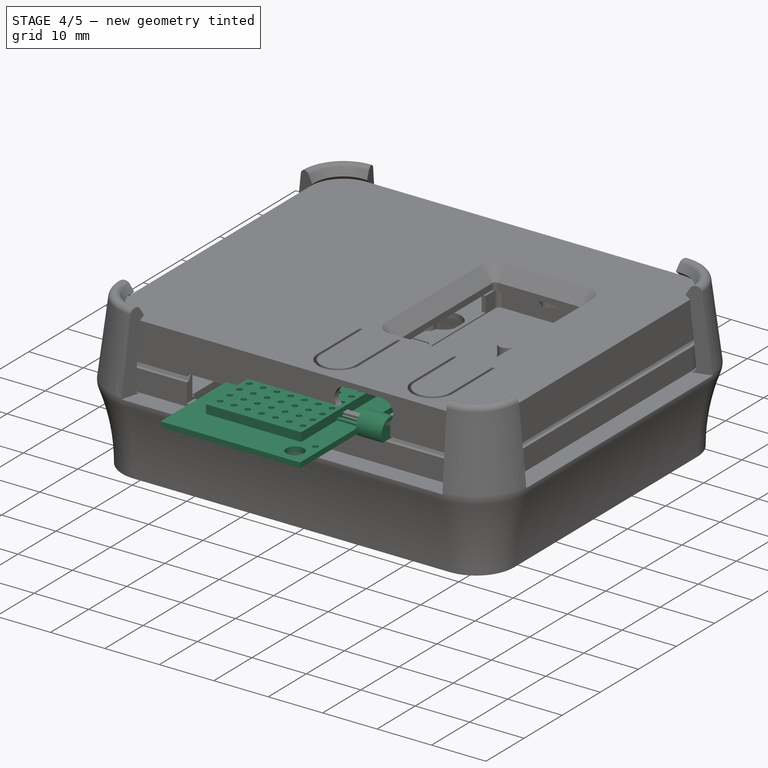
[diagram: stage 4 of 5 — iso view after this stage's code; geometry added in this stage tinted green]
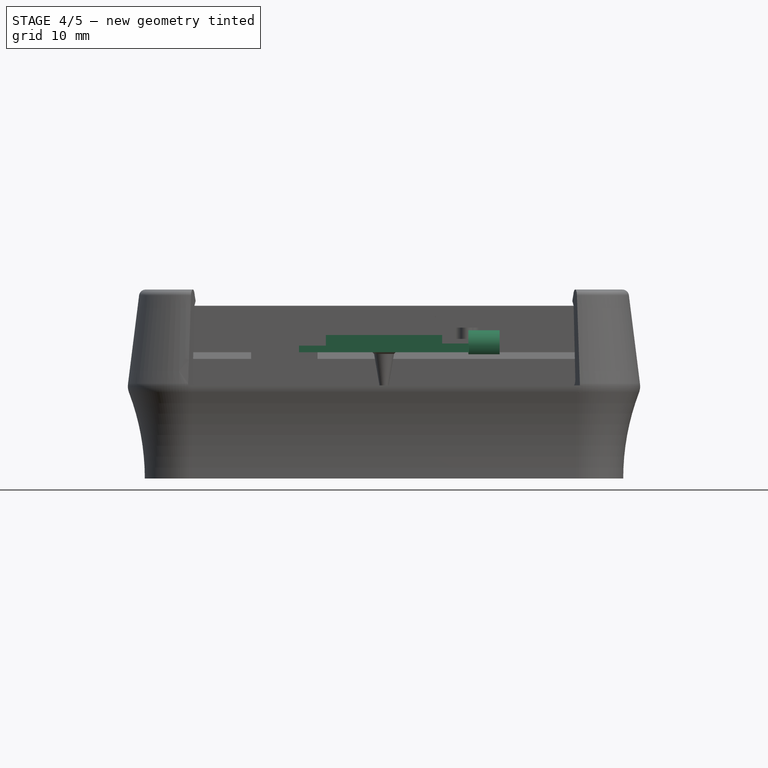
[diagram: stage 4 of 5 — front view after this stage's code; geometry added in this stage tinted green]
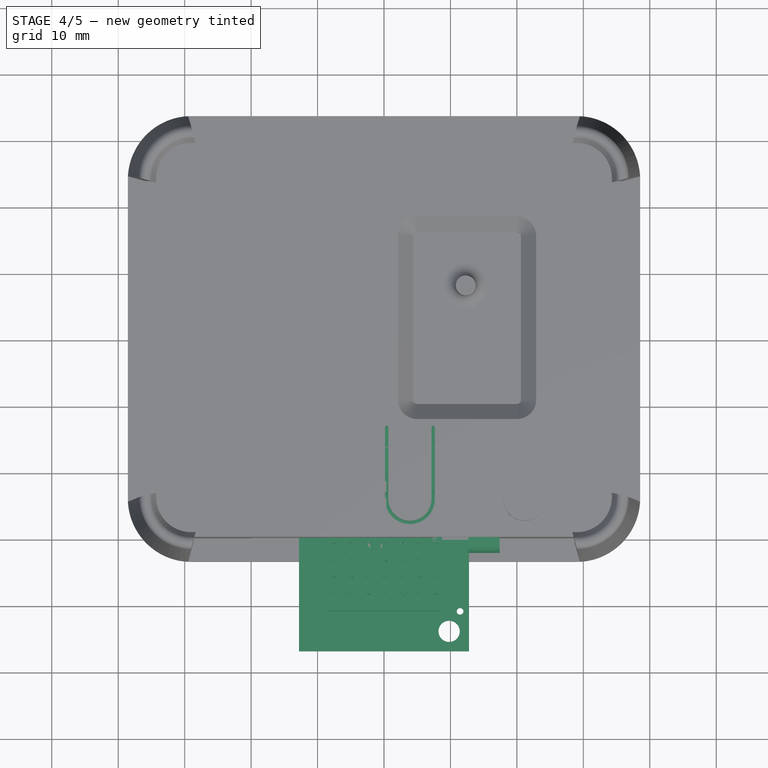
[diagram: stage 4 of 5 — top view after this stage's code; geometry added in this stage tinted green]
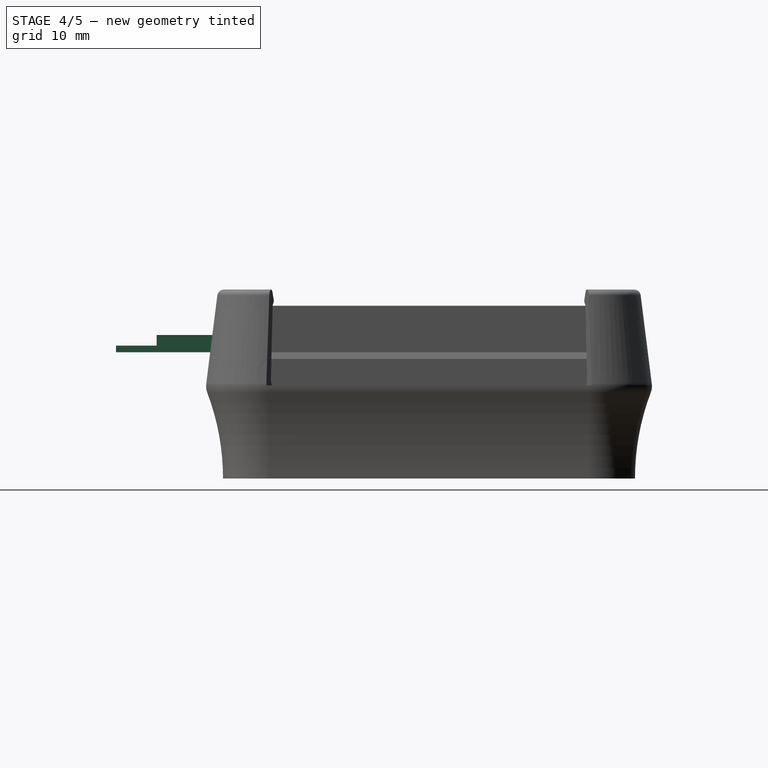
[diagram: stage 4 of 5 — right view after this stage's code; geometry added in this stage tinted green]
FEATURE [Part::Feature] Part__Feature  label="USB Type C Port (SMD Type)"
  Placement = pos=(12.545,5.776,2.875) rot=(1,0,0;3.14159rad)
  shape: bbox 9.015 x 7.975 x 4.275 mm, 394 faces, 24 solids (baked)
FEATURE [Part::Feature] Part__Feature001  label="SOLID"
  shape: bbox 25.99 x 51.49 x 7.096 mm, 98 faces (baked)
FEATURE [App::Part] TTGO_T_Display  label="TTGO T-Display"
  Group = -> [Part__Feature,Part__Feature001]
  Origin = -> Origin
  Placement = pos=(0,2,0) rot=(0,0,1;0rad)
FEATURE [Sketcher::SketchObject] Sketch
  FullyConstrained = true
  MapMode = 5
  Support = -> [XY_Plane001]
  sketch-geometry (13):
    g0: LineSegment StartX=9.8 StartY=17.1 StartZ=0 EndX=-9.8 EndY=17.1 EndZ=0
    g1: LineSegment StartX=-12.8 StartY=14.1 StartZ=0 EndX=-12.8 EndY=-17.1 EndZ=0
    g2: LineSegment StartX=-12.8 StartY=-17.1 StartZ=0 EndX=12.8 EndY=-17.1 EndZ=0
    g3: LineSegment StartX=12.8 StartY=-17.1 StartZ=0 EndX=12.8 EndY=14.1 EndZ=0
    g4: GeomPoint X=12.8 Y=17.1 Z=0
    g5: ArcOfCircle CenterX=9.8 CenterY=14.1 CenterZ=0 NormalX=0 NormalY=0 NormalZ=1 AngleXU=0 Radius=3 StartAngle=0 EndAngle=1.5708
    g6: ArcOfCircle CenterX=-9.8 CenterY=14.1 CenterZ=0 NormalX=0 NormalY=0 NormalZ=1 AngleXU=0 Radius=3 StartAngle=1.5708 EndAngle=3.14159
    g7: Circle CenterX=-9.8 CenterY=14.1 CenterZ=0 NormalX=0 NormalY=0 NormalZ=1 AngleXU=0 Radius=1.6
    g8: Circle CenterX=9.8 CenterY=-14.1 CenterZ=0 NormalX=0 NormalY=0 NormalZ=1 AngleXU=0 Radius=1.6
    g9: LineSegment StartX=-9.8 StartY=14.1 StartZ=0 EndX=9.8 EndY=14.1 EndZ=0
    g10: LineSegment StartX=9.8 StartY=14.1 StartZ=0 EndX=9.8 EndY=-14.1 EndZ=0
    g11: LineSegment StartX=9.8 StartY=-14.1 StartZ=0 EndX=-9.8 EndY=-14.1 EndZ=0
    g12: LineSegment StartX=-9.8 StartY=-14.1 StartZ=0 EndX=-9.8 EndY=14.1 EndZ=0
  constraints (29):
    c: Vertical(g1)
    c: Symmetric(g1,g3,g-2)
    c: PointOnObject(g4,g0)
    c: Symmetric(g4,g2,g-1)
    c: Symmetric(g2,g2,g-2)
    c: Tangent(g3,g5) = -1.5708
    c: Tangent(g0,g5) = -1.5708
    c: Tangent(g0,g6) = -1.5708
    c: Tangent(g1,g6) = -1.5708
    c: Symmetric(g5,g6,g-2)
    c: Coincident(g1,g2)
    c: DistanceY(g2,g0) = 34.2
    c: Vertical(g3)
    c: DistanceX(g1,g3) = 25.6
    c: Radius(g5) = 3
    c: Coincident(g7,g6)
    c: Diameter(g7) = 3.2
    c: Coincident(g9,g10)
    c: Coincident(g10,g11)
    c: Coincident(g11,g12)
    c: Coincident(g12,g9)
    c: Horizontal(g11)
    c: Vertical(g12)
    c: Coincident(g9,g6)
    c: Coincident(g10,g8)
    c: Symmetric(g6,g9,g-2)
    c: Symmetric(g5,g8,g-1)
    c: Equal(g8,g7)
    c: DistanceY(g1,g-1) = 17.1
FEATURE [PartDesign::Pad] Pad
  Direction = (1,1,1)
  Length = 1
  Length2 = 100
  Profile = -> Sketch
  Reversed = true
  Type = 0
FEATURE [PartDesign::Body] Body008  label="PinsDevice002"
  Group = -> [Sketch014,Pad010,Mirrored002,Sketch013,Pocket001,Mirrored003]
  Origin = -> Origin007
  Placement = pos=(0,29.75,0) rot=(0,0,1;0rad)
  Tip = -> Mirrored003
FEATURE [Sketcher::SketchObject] Sketch015
  FullyConstrained = false
  MapMode = 5
  Support = -> [XY_Plane001]
  sketch-geometry (1):
    g0: Circle CenterX=11.45 CenterY=-11.09 CenterZ=0 NormalX=0 NormalY=0 NormalZ=1 AngleXU=0 Radius=0.5
  constraints (3):
    c: DistanceX(g-1,g0) = 11.45
    c: DistanceY(g0,g-1) = 11.09
    c: Diameter(g0) = 1
FEATURE [PartDesign::Pocket] Pocket002
  BaseFeature = -> Pad
  Length = 5
  Length2 = 100
  Midplane = true
  Profile = -> Sketch015
  Type = 1
FEATURE [Sketcher::SketchObject] Sketch016
  FullyConstrained = true
  MapMode = 5
  Support = -> [XY_Plane010]
  sketch-geometry (4):
    g0: LineSegment StartX=-8.75 StartY=-11 StartZ=0 EndX=8.75 EndY=-11 EndZ=0
    g1: LineSegment StartX=8.75 StartY=-11 StartZ=0 EndX=8.75 EndY=11 EndZ=0
    g2: LineSegment StartX=8.75 StartY=11 StartZ=0 EndX=-8.75 EndY=11 EndZ=0
    g3: LineSegment StartX=-8.75 StartY=11 StartZ=0 EndX=-8.75 EndY=-11 EndZ=0
  constraints (10):
    c: Coincident(g0,g1)
    c: Coincident(g1,g2)
    c: Coincident(g2,g3)
    c: Coincident(g3,g0)
    c: Horizontal(g0)
    c: Vertical(g3)
    c: Symmetric(g2,g1,g-2)
    c: Symmetric(g1,g0,g-1)
    c: DistanceX(g2,g2) = 17.5
    c: DistanceY(g1,g1) = 22
FEATURE [PartDesign::Pad] Pad012
  Direction = (1,1,1)
  Length = 1.6
  Length2 = 100
  Profile = -> Sketch016
  Type = 0
FEATURE [Sketcher::SketchObject] Sketch017
  FullyConstrained = true
  MapMode = 5
  Support = -> [XY_Plane010]
  sketch-geometry (1):
    g0: Circle CenterX=-7.62 CenterY=-8.89 CenterZ=0 NormalX=0 NormalY=0 NormalZ=1 AngleXU=0 Radius=0.5
  constraints (3):
    c: DistanceX(g0,g-1) = 7.62
    c: DistanceY(g0,g-1) = 8.89
    c: Diameter(g0) = 1
FEATURE [PartDesign::Pocket] Pocket003
  BaseFeature = -> Pad012
  Length = 5
  Length2 = 100
  Profile = -> Sketch017
  Reversed = true
  Type = 1
FEATURE [PartDesign::LinearPattern] LinearPattern001
  Direction = -> X_Axis010
  Length = 15.24
  Occurrences = 7
FEATURE [PartDesign::LinearPattern] LinearPattern002
  Direction = -> Y_Axis010
  Length = 17.78
  Occurrences = 8
FEATURE [PartDesign::MultiTransform] MultiTransform001
  BaseFeature = -> Pocket003
  Originals = -> [Pocket003]
  Transformations = -> [LinearPattern001,LinearPattern002]
FEATURE [PartDesign::Body] Body009
  Group = -> [Sketch016,Pad012,Sketch017,Pocket003,MultiTransform001,LinearPattern001,LinearPattern002]
  Origin = -> Origin010
  Tip = -> MultiTransform001
FEATURE [Sketcher::SketchObject] Sketch008
  AttachmentOffset = pos=(0,0,12.7) rot=(0,0,1;0rad)
  FullyConstrained = true
  MapMode = 5
  Placement = pos=(12.7,-2.8e-15,2.8e-15) rot=(0.57735,0.57735,0.57735;2.0944rad)
  Support = -> [YZ_Plane005]
  sketch-geometry (2):
    g0: ArcOfCircle CenterX=0 CenterY=0 CenterZ=0 NormalX=0 NormalY=0 NormalZ=1 AngleXU=0 Radius=2.3 StartAngle=5.68249 EndAngle=10.0255
    g1: LineSegment StartX=1.89737 StartY=-1.3 StartZ=0 EndX=-1.89737 EndY=-1.3 EndZ=0
  constraints (6):
    c: Coincident(g1,g0)
    c: Coincident(g1,g0)
    c: Coincident(g0,g-1)
    c: Diameter(g0) = 4.6
    c: Distance(g0,g1) = 1.3
    c: Horizontal(g1)
FEATURE [PartDesign::Pad] Pad007
  Direction = (1,1,1)
  Length = 4.7
  Length2 = 100
  Placement = pos=(0,0,0) rot=(0.57735,0.57735,0.57735;2.0944rad)
  Profile = -> Sketch008
  Type = 0
FEATURE [PartDesign::Body] Body005  label="DallasSensorHousing"
  Group = -> [Sketch008,Pad007]
  Origin = -> Origin005
  Tip = -> Pad007
FEATURE [Sketcher::SketchObject] Sketch024
  FullyConstrained = true
  MapMode = 5
  Placement = pos=(0,0,0) rot=(0.57735,0.57735,0.57735;2.0944rad)
  Support = -> [YZ_Plane013]
  sketch-geometry (4):
    g0: LineSegment StartX=-0.318198 StartY=0.318198 StartZ=0 EndX=0.318198 EndY=0.318198 EndZ=0
    g1: LineSegment StartX=0.318198 StartY=0.318198 StartZ=0 EndX=0.318198 EndY=-0.318198 EndZ=0
    g2: LineSegment StartX=0.318198 StartY=-0.318198 StartZ=0 EndX=-0.318198 EndY=-0.318198 EndZ=0
    g3: LineSegment StartX=-0.318198 StartY=-0.318198 StartZ=0 EndX=-0.318198 EndY=0.318198 EndZ=0
  constraints (10):
    c: Coincident(g0,g1)
    c: Coincident(g1,g2)
    c: Coincident(g2,g3)
    c: Coincident(g3,g0)
    c: Horizontal(g2)
    c: Vertical(g3)
    c: Symmetric(g1,g0,g-1)
    c: Symmetric(g0,g0,g-2)
    c: Equal(g0,g1)
    c: Distance(g0,g1) = 0.9
FEATURE [PartDesign::Pad] Pad013
  Direction = (1,1,1)
  Length = 12.7
  Length2 = 100
  Placement = pos=(0,0,0) rot=(0.57735,0.57735,0.57735;2.0944rad)
  Profile = -> Sketch024
  Type = 0
FEATURE [PartDesign::Body] Body012  label="DallasPin001"
  Group = -> [Sketch024,Pad013]
  Origin = -> Origin013
  Placement = pos=(0,-1.27,0) rot=(1,0,0;3.14159rad)
  Tip = -> Pad013
FEATURE [Part::FeaturePython] Array  # Draft array (typed FeaturePython)
  Angle = 360
  ArrayType = 0
  Axis = (0,0,1)
  Base = -> Body012
  Center = (0,0,0)
  Count = 3
  ExpandArray = false
  Fuse = false
  IntervalAxis = (0,0,0)
  IntervalX = (0,1.27,0)
  IntervalY = (0,100,0)
  IntervalZ = (0,0,100)
  NumberCircles = 3
  NumberPolar = 5
  NumberX = 3
  NumberY = 1
  NumberZ = 1
  PlacementList = 3 placements: arithmetic series from (0,-1.27,0) step (0,1.27,0) to (0,1.27,0)
  RadialDistance = 50
  ScaleList = (3) [(1,1,1),(1,1,1),(1,1,1)]
  Symmetry = 1
  TangentialDistance = 25
FEATURE [Sketcher::SketchObject] Sketch026
  FullyConstrained = true
  MapMode = 5
  Placement = pos=(0,0,0) rot=(1,0,0;1.5708rad)
  Support = -> [XZ_Plane017]
  sketch-geometry (5):
    g0: LineSegment StartX=0 StartY=0 StartZ=0 EndX=0 EndY=-10 EndZ=0
    g1: LineSegment StartX=0 StartY=-10 StartZ=0 EndX=1.5 EndY=-1.25 EndZ=0
    g2: LineSegment StartX=1.5 StartY=-1.25 StartZ=0 EndX=2.65 EndY=-0.1 EndZ=0
    g3: LineSegment StartX=2.65 StartY=0 StartZ=0 EndX=0 EndY=0 EndZ=0
    g4: LineSegment StartX=2.65 StartY=-0.1 StartZ=0 EndX=2.65 EndY=0 EndZ=0
  constraints (14):
    c: Coincident(g-1,g0)
    c: Vertical(g0)
    c: Coincident(g0,g1)
    c: Coincident(g1,g2)
    c: Coincident(g3,g0)
    c: DistanceY(g0,g0) = 10
    c: Angle(g3,g2) = 0.785398
    c: DistanceX(g0,g1) = 1.5
    c: Horizontal(g3)
    c: Coincident(g4,g2)
    c: Vertical(g4)
    c: Coincident(g3,g4)
    c: DistanceX(g3) = 2.65
    c: DistanceY(g4,g4) = 0.1
FEATURE [PartDesign::Revolution] Revolution
  AllowMultiFace = false
  Angle = 360
  Axis = (-3e-16,3e-16,1)
  Base = (0,0,0)
  Placement = pos=(0,0,0) rot=(1,0,0;1.5708rad)
  Profile = -> Sketch026
  ReferenceAxis = -> Z_Axis017
  Reversed = true
FEATURE [Sketcher::SketchObject] Sketch027
  FullyConstrained = false
  MapMode = 5
  Placement = pos=(0,0,0) rot=(1,0,0;1.5708rad)
  Support = -> [XZ_Plane017]
  sketch-geometry (3):
    g0: LineSegment StartX=-2 StartY=0 StartZ=0 EndX=0 EndY=-2 EndZ=0
    g1: LineSegment StartX=0 StartY=-2 StartZ=0 EndX=2 EndY=0 EndZ=0
    g2: LineSegment StartX=2 StartY=0 StartZ=0 EndX=-2 EndY=0 EndZ=0
  constraints (9):
    c: PointOnObject(g0,g-1)
    c: Coincident(g0,g1)
    c: PointOnObject(g1,g-1)
    c: Coincident(g1,g2)
    c: Coincident(g2,g0)
    c: PointOnObject(g0,g-2)
    c: Equal(g1,g0)
    c: Perpendicular(g0,g1)
    c: DistanceX(g2,g2) = 4
FEATURE [PartDesign::Pocket] Pocket004
  AllowMultiFace = false
  BaseFeature = -> Revolution
  Length = 0.6
  Length2 = 100
  Midplane = true
  Placement = pos=(0,0,0) rot=(1,0,0;1.5708rad)
  Profile = -> Sketch027
  Type = 0
FEATURE [PartDesign::PolarPattern] PolarPattern
  Angle = 90
  Axis = -> Z_Axis017
  BaseFeature = -> Pocket004
  Occurrences = 2
  Originals = -> [Pocket004]
  Placement = pos=(0,0,0) rot=(1,0,0;1.5708rad)
FEATURE [PartDesign::Pocket] Pocket005
  AllowMultiFace = false
  BaseFeature = -> Revolution001
  Length = 0.6
  Length2 = 100
  Midplane = true
  Placement = pos=(0,0,0) rot=(1,0,0;1.5708rad)
  Profile = -> Sketch029
  Type = 0
FEATURE [PartDesign::PolarPattern] PolarPattern001
  Angle = 90
  Axis = -> Z_Axis018
  BaseFeature = -> Pocket005
  Occurrences = 2
  Originals = -> [Pocket005]
  Placement = pos=(0,0,0) rot=(1,0,0;1.5708rad)
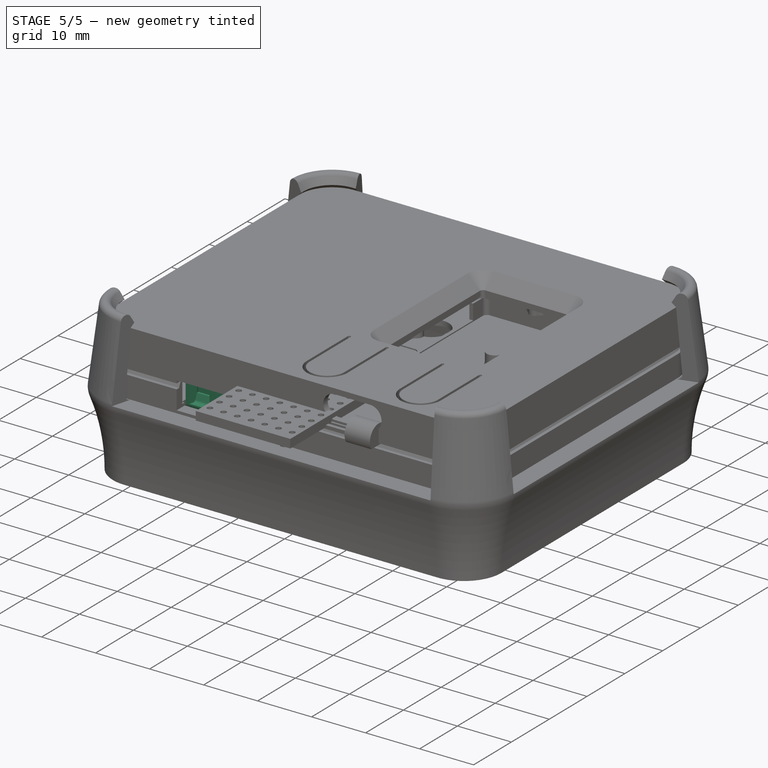
[diagram: stage 5 of 5 — iso view after this stage's code; geometry added in this stage tinted green]
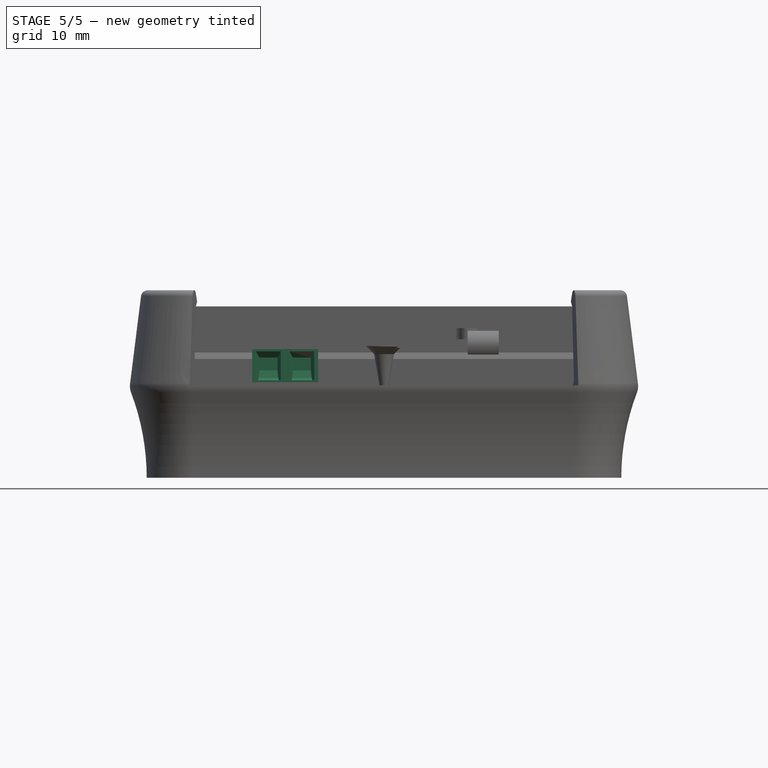
[diagram: stage 5 of 5 — front view after this stage's code; geometry added in this stage tinted green]
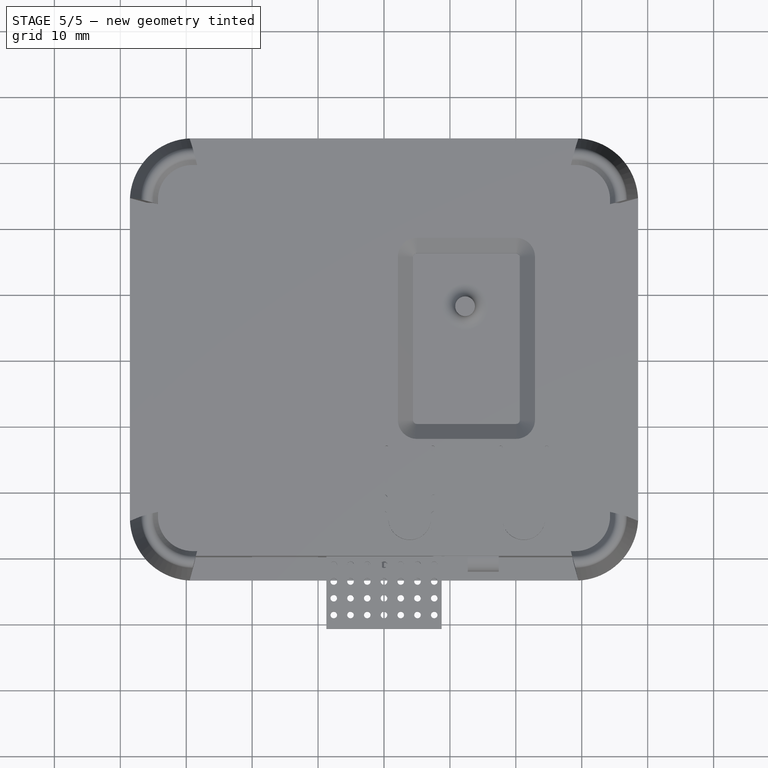
[diagram: stage 5 of 5 — top view after this stage's code; geometry added in this stage tinted green]
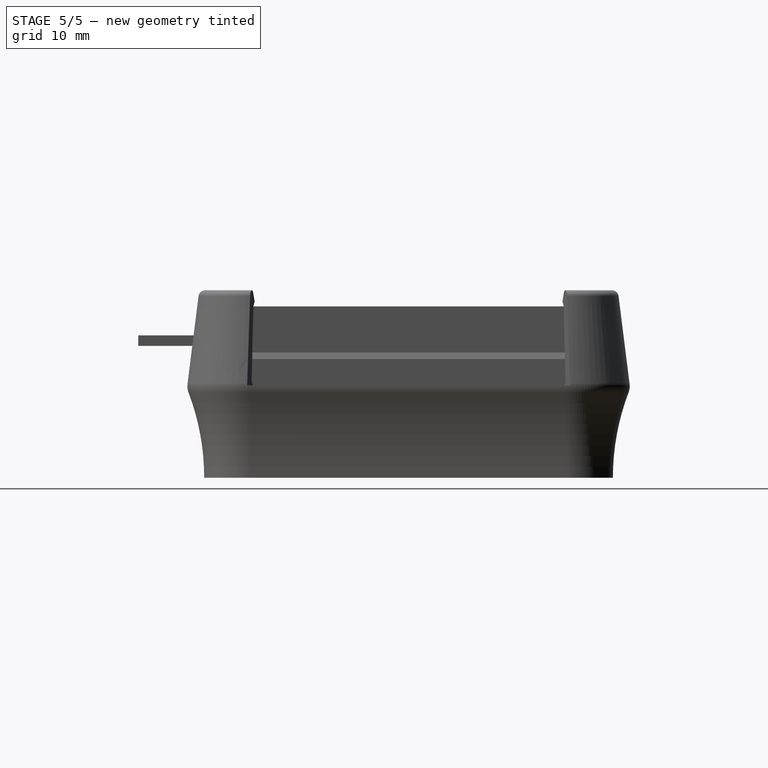
[diagram: stage 5 of 5 — right view after this stage's code; geometry added in this stage tinted green]
FEATURE [Part::Feature] Part__Feature002  label="Phonix2Pins"
  Placement = pos=(2.53914,39.9011,-15.51) rot=(0.57735,0.57735,0.57735;2.0944rad)
  shape: bbox 10.73 x 8.1 x 13.5 mm, 169 faces (baked)
FEATURE [Sketcher::SketchObject] Sketch001
  FullyConstrained = false
  MapMode = 5
  Placement = pos=(0,0,0) rot=(0.57735,0.57735,0.57735;2.0944rad)
  Support = -> [YZ_Plane002]
  sketch-geometry (4):
    g0: LineSegment StartX=-2.25 StartY=3.6 StartZ=0 EndX=2.25 EndY=3.6 EndZ=0
    g1: LineSegment StartX=2.25 StartY=3.6 StartZ=0 EndX=2.25 EndY=0 EndZ=0
    g2: LineSegment StartX=2.25 StartY=0 StartZ=0 EndX=-2.25 EndY=0 EndZ=0
    g3: LineSegment StartX=-2.25 StartY=0 StartZ=0 EndX=-2.25 EndY=3.6 EndZ=0
  constraints (11):
    c: Coincident(g0,g1)
    c: Coincident(g1,g2)
    c: Coincident(g2,g3)
    c: Coincident(g3,g0)
    c: Horizontal(g2)
    c: Vertical(g1)
    c: Vertical(g3)
    c: DistanceX(g0,g0) = 4.5
    c: DistanceY(g1,g1) = 3.6
    c: PointOnObject(g1,g-1)
    c: Symmetric(g0,g0,g-2)
FEATURE [PartDesign::Pad] Pad001
  Direction = (1,1,1)
  Length = 6.3
  Length2 = 100
  Midplane = true
  Placement = pos=(0,0,0) rot=(0.57735,0.57735,0.57735;2.0944rad)
  Profile = -> Sketch001
  Type = 0
FEATURE [PartDesign::Body] Body001  label="BodyDevice1"
  Group = -> [Sketch001,Pad001]
  Origin = -> Origin002
  Placement = pos=(0,14.75,0) rot=(0,0,1;0rad)
  Tip = -> Pad001
FEATURE [Sketcher::SketchObject] Sketch010
  FullyConstrained = false
  MapMode = 5
  Placement = pos=(0,0,0) rot=(1,0,0;1.5708rad)
  Support = -> [XZ_Plane003]
  sketch-geometry (10):
    g0: LineSegment StartX=0 StartY=1.9 StartZ=0 EndX=3.2 EndY=1.9 EndZ=0
    g1: LineSegment StartX=3.2 StartY=1.4 StartZ=0 EndX=0 EndY=1.4 EndZ=0
    g2: LineSegment StartX=0 StartY=1.4 StartZ=0 EndX=0 EndY=1.9 EndZ=0
    g3: LineSegment StartX=4 StartY=0.5 StartZ=0 EndX=5.5 EndY=0.5 EndZ=0
    g4: LineSegment StartX=5.5 StartY=0.5 StartZ=0 EndX=5.5 EndY=0 EndZ=0
    g5: LineSegment StartX=5.5 StartY=0 StartZ=0 EndX=4 EndY=0 EndZ=0
    g6: LineSegment StartX=3.2 StartY=1.4 StartZ=0 EndX=3.5221 EndY=0.352981 EndZ=0
    g7: LineSegment StartX=4 StartY=0.5 StartZ=0 EndX=3.6779 EndY=1.54702 EndZ=0
    g8: ArcOfCircle CenterX=3.2 CenterY=1.4 CenterZ=0 NormalX=0 NormalY=0 NormalZ=1 AngleXU=0 Radius=0.5 StartAngle=0.29845 EndAngle=1.5708
    g9: ArcOfCircle CenterX=4 CenterY=0.5 CenterZ=0 NormalX=0 NormalY=0 NormalZ=1 AngleXU=0 Radius=0.5 StartAngle=3.44004 EndAngle=4.71239
  constraints (26):
    c: Coincident(g1,g2)
    c: Coincident(g2,g0)
    c: Horizontal(g0)
    c: Horizontal(g1)
    c: Vertical(g2)
    c: PointOnObject(g0,g-2)
    c: Coincident(g3,g4)
    c: Coincident(g4,g5)
    c: Horizontal(g3)
    c: Horizontal(g5)
    c: Vertical(g4)
    c: PointOnObject(g4,g-1)
    c: Tangent(g0,g8) = 1.5708
    c: Tangent(g7,g8) = -1.5708
    c: Tangent(g6,g9) = -1.5708
    c: Tangent(g5,g9) = 1.5708
    c: Coincident(g3,g7)
    c: Coincident(g3,g9)
    c: Coincident(g1,g6)
    c: Coincident(g1,g8)
    c: Parallel(g6,g7)
    c: DistanceX(g3) = 5.5
    c: DistanceY(g4,g4) = 0.5
    c: DistanceX(g1) = 3.2
    c: DistanceY(g1) = 1.4
    c: DistanceX(g1,g3) = 0.8
FEATURE [PartDesign::Pad] Pad009
  Direction = (1,1,1)
  Length = 4
  Length2 = 100
  Midplane = true
  Placement = pos=(0,0,0) rot=(1,0,0;1.5708rad)
  Profile = -> Sketch010
  Type = 0
FEATURE [PartDesign::Mirrored] Mirrored
  BaseFeature = -> Pad009
  MirrorPlane = -> YZ_Plane003
  Originals = -> [Pad009]
  Placement = pos=(0,0,0) rot=(1,0,0;1.5708rad)
FEATURE [Sketcher::SketchObject] Sketch011
  FullyConstrained = false
  MapMode = 5
  Support = -> [XY_Plane003]
  sketch-geometry (4):
    g0: LineSegment StartX=6 StartY=0.9 StartZ=0 EndX=1 EndY=0.9 EndZ=0
    g1: LineSegment StartX=1 StartY=0.9 StartZ=0 EndX=1 EndY=-0.9 EndZ=0
    g2: LineSegment StartX=1 StartY=-0.9 StartZ=0 EndX=6 EndY=-0.9 EndZ=0
    g3: LineSegment StartX=6 StartY=-0.9 StartZ=0 EndX=6 EndY=0.9 EndZ=0
  constraints (11):
    c: Coincident(g0,g1)
    c: Coincident(g1,g2)
    c: Coincident(g2,g3)
    c: Coincident(g3,g0)
    c: Horizontal(g0)
    c: Horizontal(g2)
    c: Vertical(g1)
    c: Symmetric(g0,g2,g-1)
    c: DistanceY(g3,g3) = 1.8
    c: DistanceX(g0) = 6
    c: DistanceX(g0) = 1
FEATURE [PartDesign::Pocket] Pocket
  BaseFeature = -> Mirrored
  Length = 5
  Length2 = 100
  Midplane = true
  Placement = pos=(0,0,0) rot=(1,0,0;1.5708rad)
  Profile = -> Sketch011
  Type = 1
FEATURE [PartDesign::Mirrored] Mirrored001
  BaseFeature = -> Pocket
  MirrorPlane = -> YZ_Plane003
  Originals = -> [Pocket]
  Placement = pos=(0,0,0) rot=(1,0,0;1.5708rad)
FEATURE [PartDesign::Body] Body002  label="PinsDevice1"
  Group = -> [Sketch010,Pad009,Mirrored,Sketch011,Pocket,Mirrored001]
  Origin = -> Origin003
  Placement = pos=(0,14.75,0) rot=(0,0,1;0rad)
  Tip = -> Mirrored001
FEATURE [Sketcher::SketchObject] Sketch012
  FullyConstrained = false
  MapMode = 5
  Placement = pos=(0,0,0) rot=(0.57735,0.57735,0.57735;2.0944rad)
  Support = -> [YZ_Plane007]
  sketch-geometry (4):
    g0: LineSegment StartX=-2.25 StartY=3.6 StartZ=0 EndX=2.25 EndY=3.6 EndZ=0
    g1: LineSegment StartX=2.25 StartY=3.6 StartZ=0 EndX=2.25 EndY=0 EndZ=0
    g2: LineSegment StartX=2.25 StartY=0 StartZ=0 EndX=-2.25 EndY=0 EndZ=0
    g3: LineSegment StartX=-2.25 StartY=0 StartZ=0 EndX=-2.25 EndY=3.6 EndZ=0
  constraints (11):
    c: Coincident(g0,g1)
    c: Coincident(g1,g2)
    c: Coincident(g2,g3)
    c: Coincident(g3,g0)
    c: Horizontal(g2)
    c: Vertical(g1)
    c: Vertical(g3)
    c: DistanceX(g0,g0) = 4.5
    c: DistanceY(g1,g1) = 3.6
    c: PointOnObject(g1,g-1)
    c: Symmetric(g0,g0,g-2)
FEATURE [PartDesign::Pad] Pad011
  Direction = (1,1,1)
  Length = 6.3
  Length2 = 100
  Midplane = true
  Placement = pos=(0,0,0) rot=(0.57735,0.57735,0.57735;2.0944rad)
  Profile = -> Sketch012
  Type = 0
FEATURE [PartDesign::Body] Body007  label="BodyDevice002"
  Group = -> [Sketch012,Pad011]
  Origin = -> Origin008
  Placement = pos=(0,29.75,0) rot=(0,0,1;0rad)
  Tip = -> Pad011
FEATURE [Sketcher::SketchObject] Sketch013
  FullyConstrained = false
  MapMode = 5
  Support = -> [XY_Plane007]
  sketch-geometry (4):
    g0: LineSegment StartX=6 StartY=0.9 StartZ=0 EndX=1 EndY=0.9 EndZ=0
    g1: LineSegment StartX=1 StartY=0.9 StartZ=0 EndX=1 EndY=-0.9 EndZ=0
    g2: LineSegment StartX=1 StartY=-0.9 StartZ=0 EndX=6 EndY=-0.9 EndZ=0
    g3: LineSegment StartX=6 StartY=-0.9 StartZ=0 EndX=6 EndY=0.9 EndZ=0
  constraints (11):
    c: Coincident(g0,g1)
    c: Coincident(g1,g2)
    c: Coincident(g2,g3)
    c: Coincident(g3,g0)
    c: Horizontal(g0)
    c: Horizontal(g2)
    c: Vertical(g1)
    c: Symmetric(g0,g2,g-1)
    c: DistanceY(g3,g3) = 1.8
    c: DistanceX(g0) = 6
    c: DistanceX(g0) = 1
FEATURE [Sketcher::SketchObject] Sketch014
  FullyConstrained = false
  MapMode = 5
  Placement = pos=(0,0,0) rot=(1,0,0;1.5708rad)
  Support = -> [XZ_Plane008]
  sketch-geometry (10):
    g0: LineSegment StartX=0 StartY=1.9 StartZ=0 EndX=3.2 EndY=1.9 EndZ=0
    g1: LineSegment StartX=3.2 StartY=1.4 StartZ=0 EndX=0 EndY=1.4 EndZ=0
    g2: LineSegment StartX=0 StartY=1.4 StartZ=0 EndX=0 EndY=1.9 EndZ=0
    g3: LineSegment StartX=4 StartY=0.5 StartZ=0 EndX=5.5 EndY=0.5 EndZ=0
    g4: LineSegment StartX=5.5 StartY=0.5 StartZ=0 EndX=5.5 EndY=0 EndZ=0
    g5: LineSegment StartX=5.5 StartY=0 StartZ=0 EndX=4 EndY=0 EndZ=0
    g6: LineSegment StartX=3.2 StartY=1.4 StartZ=0 EndX=3.5221 EndY=0.352981 EndZ=0
    g7: LineSegment StartX=4 StartY=0.5 StartZ=0 EndX=3.6779 EndY=1.54702 EndZ=0
    g8: ArcOfCircle CenterX=3.2 CenterY=1.4 CenterZ=0 NormalX=0 NormalY=0 NormalZ=1 AngleXU=0 Radius=0.5 StartAngle=0.29845 EndAngle=1.5708
    g9: ArcOfCircle CenterX=4 CenterY=0.5 CenterZ=0 NormalX=0 NormalY=0 NormalZ=1 AngleXU=0 Radius=0.5 StartAngle=3.44004 EndAngle=4.71239
  constraints (26):
    c: Coincident(g1,g2)
    c: Coincident(g2,g0)
    c: Horizontal(g0)
    c: Horizontal(g1)
    c: Vertical(g2)
    c: PointOnObject(g0,g-2)
    c: Coincident(g3,g4)
    c: Coincident(g4,g5)
    c: Horizontal(g3)
    c: Horizontal(g5)
    c: Vertical(g4)
    c: PointOnObject(g4,g-1)
    c: Tangent(g0,g8) = 1.5708
    c: Tangent(g7,g8) = -1.5708
    c: Tangent(g6,g9) = -1.5708
    c: Tangent(g5,g9) = 1.5708
    c: Coincident(g3,g7)
    c: Coincident(g3,g9)
    c: Coincident(g1,g6)
    c: Coincident(g1,g8)
    c: Parallel(g6,g7)
    c: DistanceX(g3) = 5.5
    c: DistanceY(g4,g4) = 0.5
    c: DistanceX(g1) = 3.2
    c: DistanceY(g1) = 1.4
    c: DistanceX(g1,g3) = 0.8
FEATURE [PartDesign::Pad] Pad010
  Direction = (1,1,1)
  Length = 4
  Length2 = 100
  Midplane = true
  Placement = pos=(0,0,0) rot=(1,0,0;1.5708rad)
  Profile = -> Sketch014
  Type = 0
FEATURE [PartDesign::Mirrored] Mirrored002
  BaseFeature = -> Pad010
  MirrorPlane = -> YZ_Plane008
  Originals = -> [Pad010]
  Placement = pos=(0,0,0) rot=(1,0,0;1.5708rad)
FEATURE [PartDesign::Pocket] Pocket001
  BaseFeature = -> Mirrored002
  Length = 5
  Length2 = 100
  Midplane = true
  Placement = pos=(0,0,0) rot=(1,0,0;1.5708rad)
  Profile = -> Sketch013
  Type = 1
FEATURE [PartDesign::Mirrored] Mirrored003
  BaseFeature = -> Pocket001
  MirrorPlane = -> YZ_Plane008
  Originals = -> [Pocket001]
  Placement = pos=(0,0,0) rot=(1,0,0;1.5708rad)
FEATURE [PartDesign::LinearPattern] LinearPattern
  Direction = -> Y_Axis001
  Length = 20.32
  Occurrences = 9
FEATURE [PartDesign::Mirrored] Mirrored004
  MirrorPlane = -> YZ_Plane001
FEATURE [PartDesign::MultiTransform] MultiTransform
  BaseFeature = -> Pocket002
  Originals = -> [Pocket002]
  Transformations = -> [LinearPattern,Mirrored004]
FEATURE [PartDesign::Body] Body  label="PCB"
  Group = -> [Sketch,Pad,Sketch015,Pocket002,MultiTransform,LinearPattern,Mirrored004]
  Origin = -> Origin001
  Placement = pos=(0,17.1,0) rot=(0,0,1;0rad)
  Tip = -> MultiTransform
FEATURE [Part::Compound] Compound  label="OpenThermAdaptor"
  Links = -> [Body,Part__Feature002,Body001,Body002,Body007,Body008]
  Placement = pos=(-15,2.5,-2e-15) rot=(0,1,0;3.14159rad)
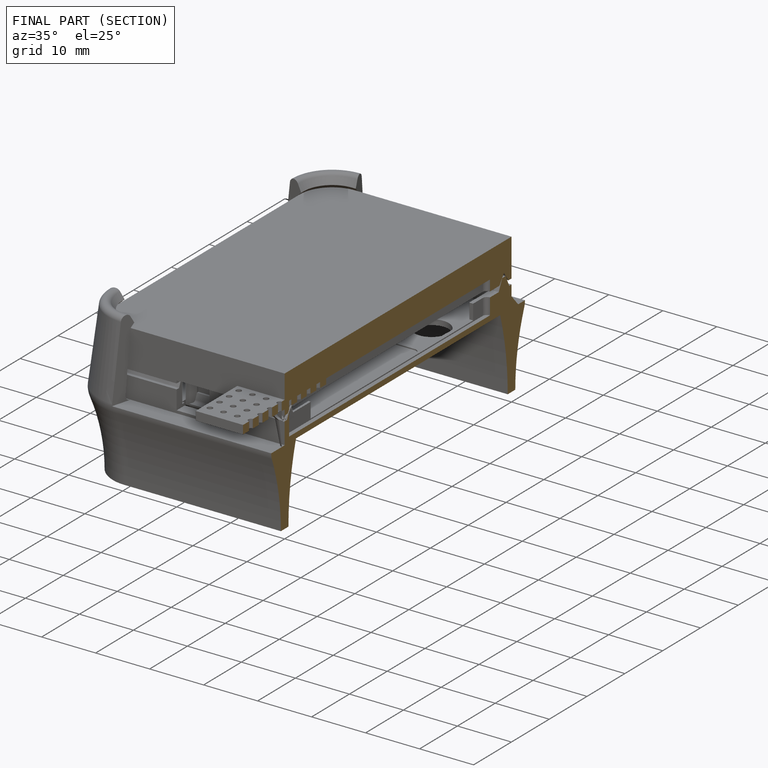
[diagram: finished part — half-section view (interior)]
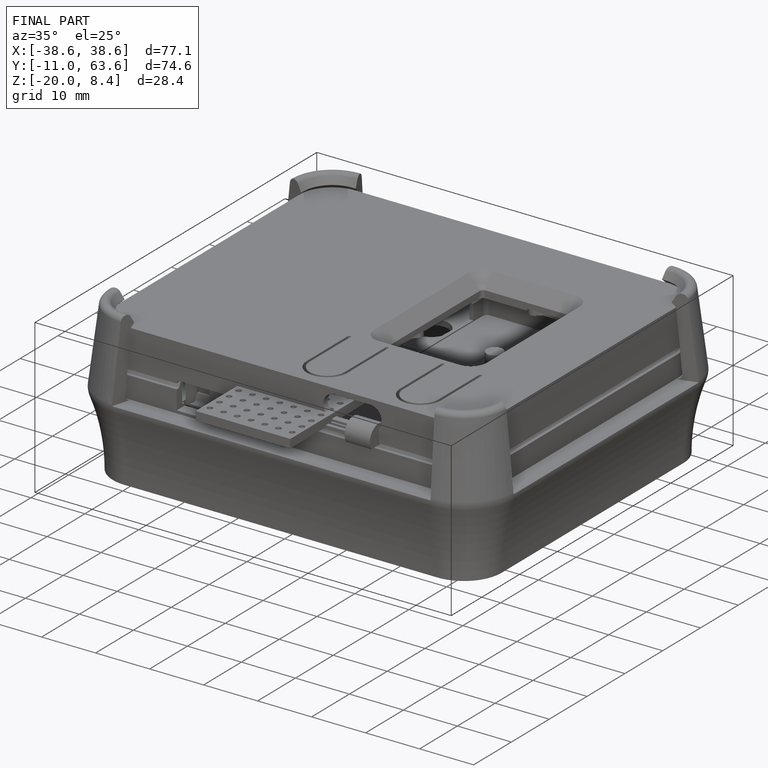
[diagram: finished part — iso view with bounding-box wireframe]
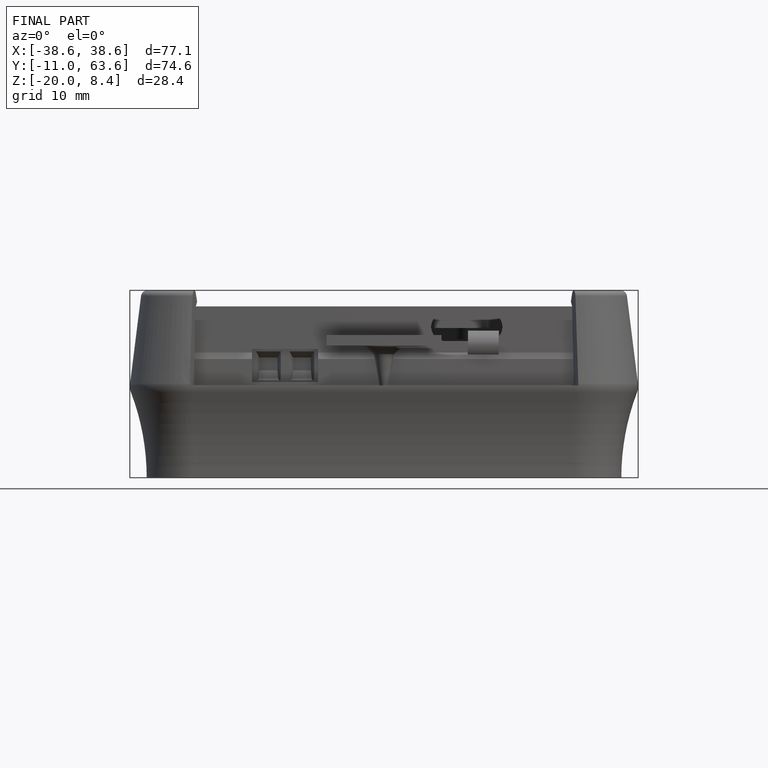
[diagram: finished part — front view with bounding-box wireframe]
